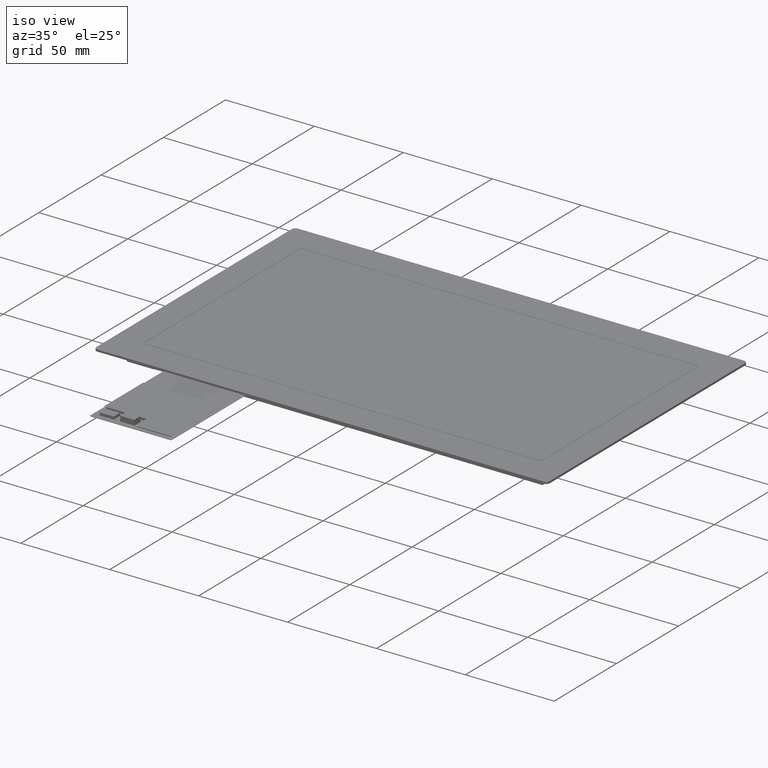
[diagram: clean part render]
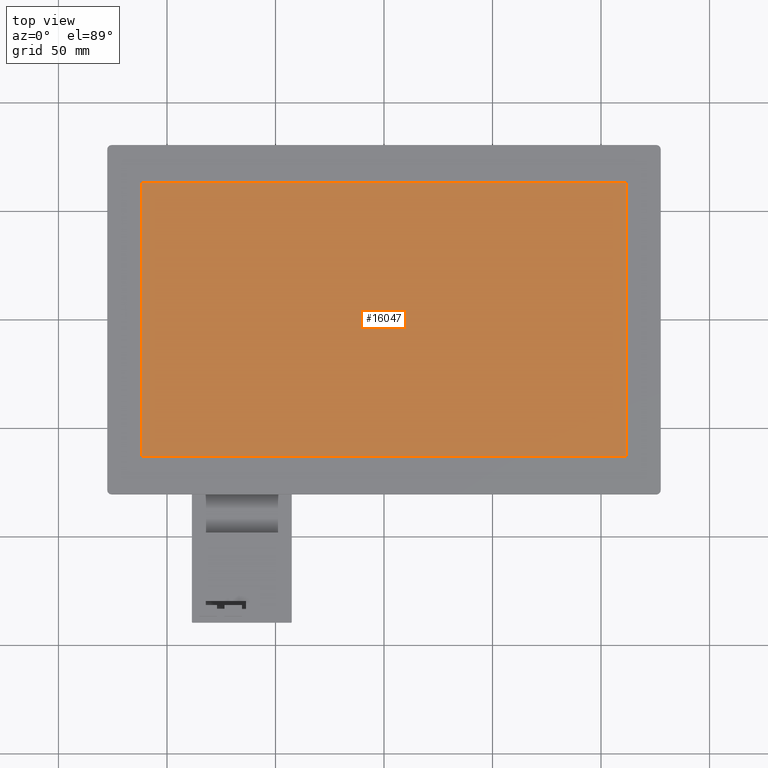
[diagram: tour spotlight — one face highlighted and labeled with its STEP entity id]
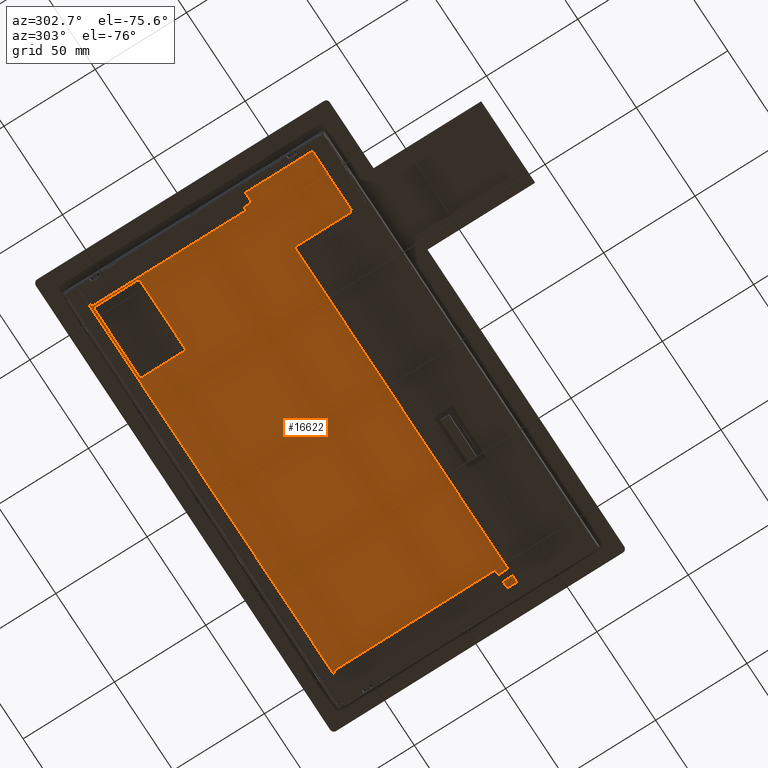
[diagram: tour spotlight — one face highlighted and labeled with its STEP entity id]
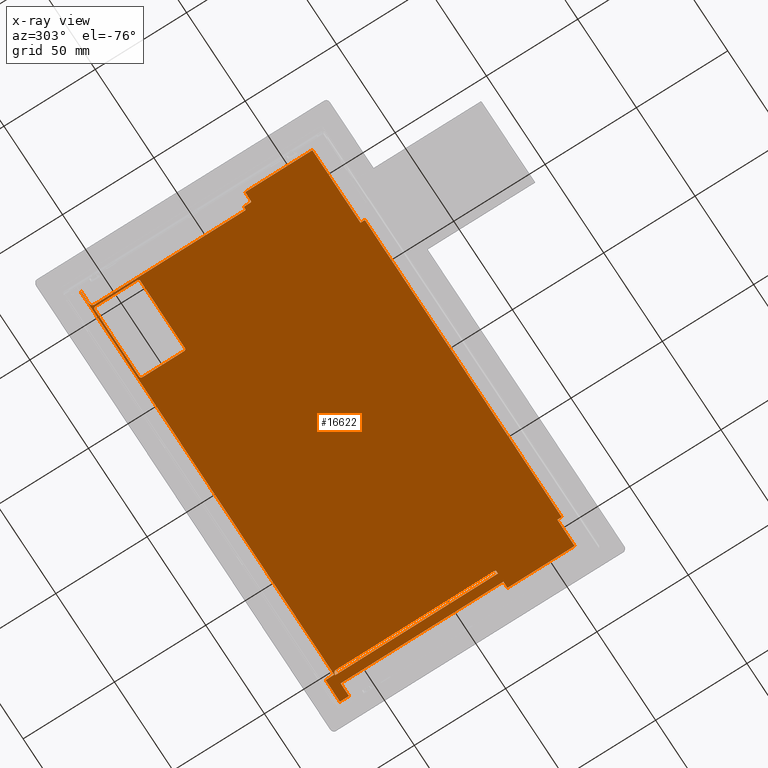
[diagram: x-ray of the same camera — body ghosted, this tour face saturated]
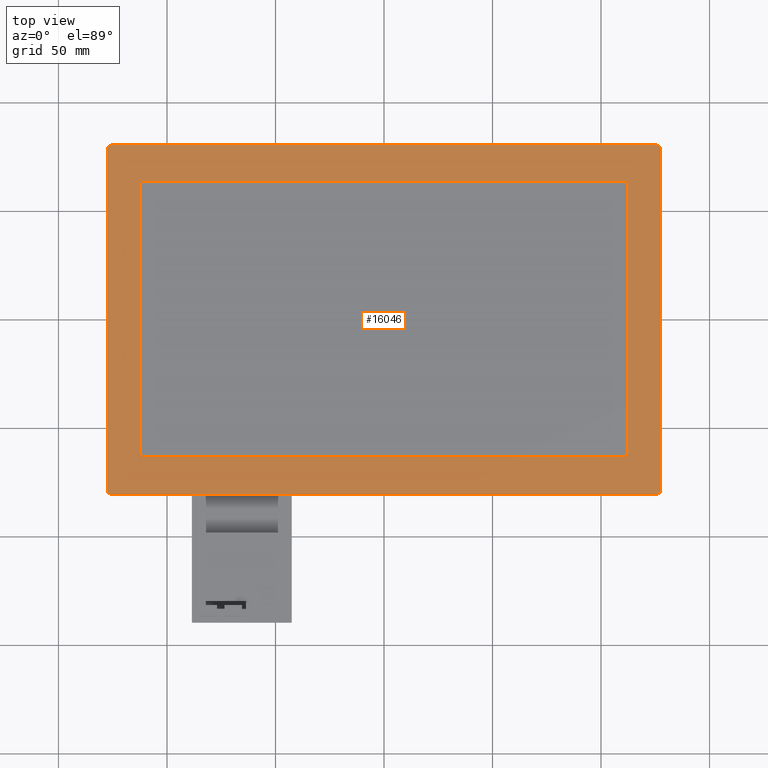
[diagram: tour spotlight — one face highlighted and labeled with its STEP entity id]
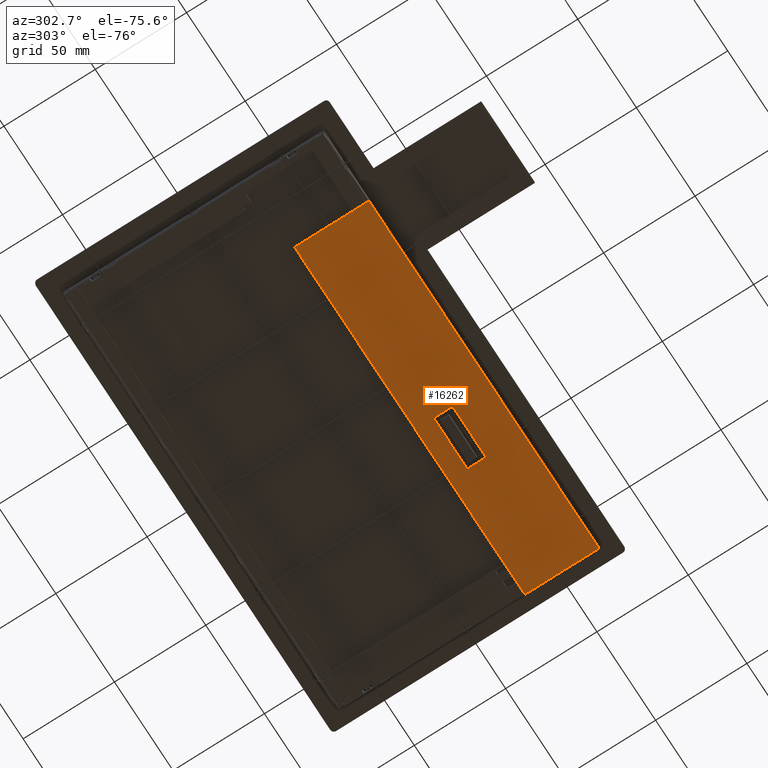
[diagram: tour spotlight — one face highlighted and labeled with its STEP entity id]
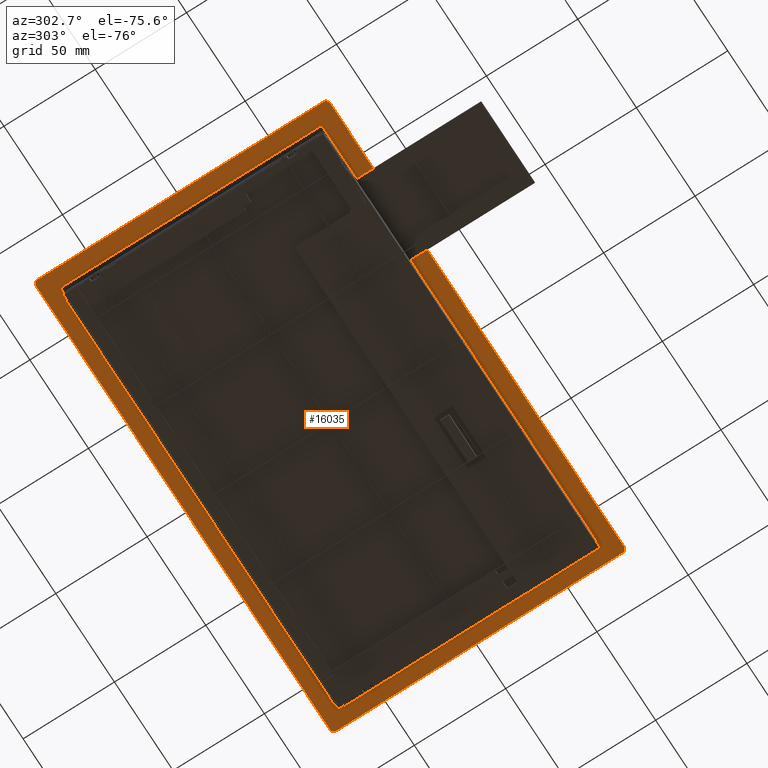
[diagram: tour spotlight — one face highlighted and labeled with its STEP entity id]
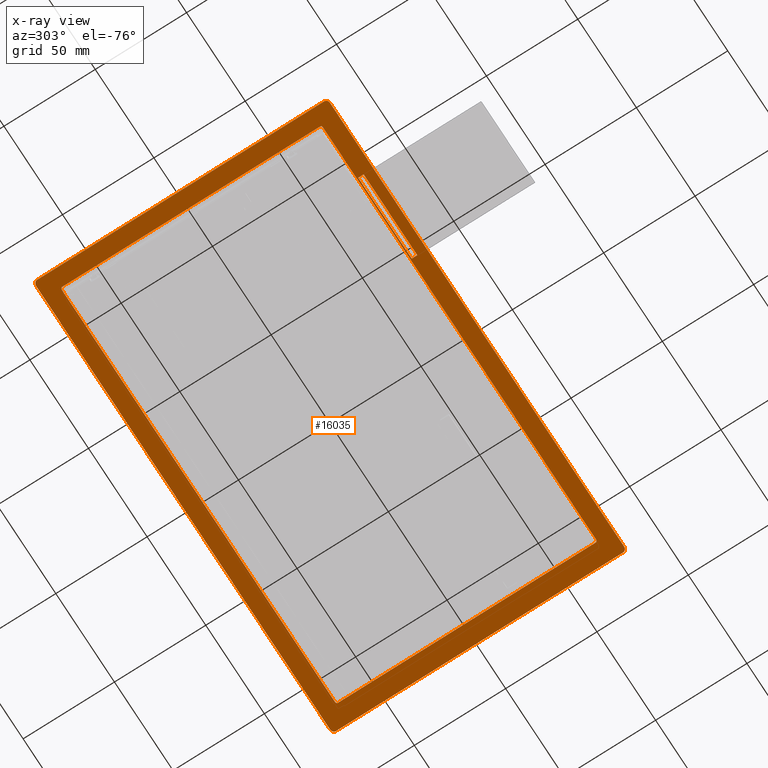
[diagram: x-ray of the same camera — body ghosted, this tour face saturated]
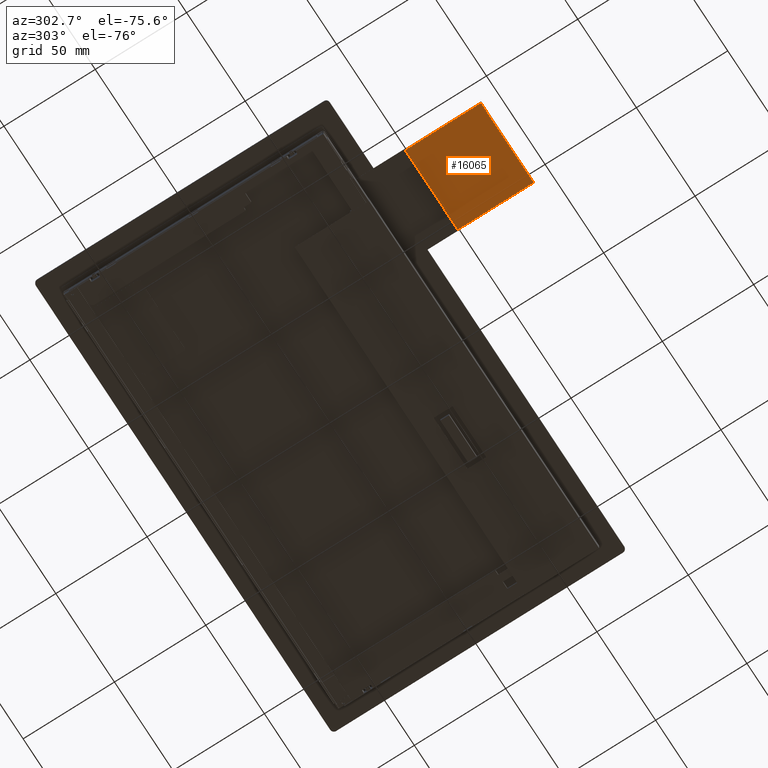
[diagram: tour spotlight — one face highlighted and labeled with its STEP entity id]
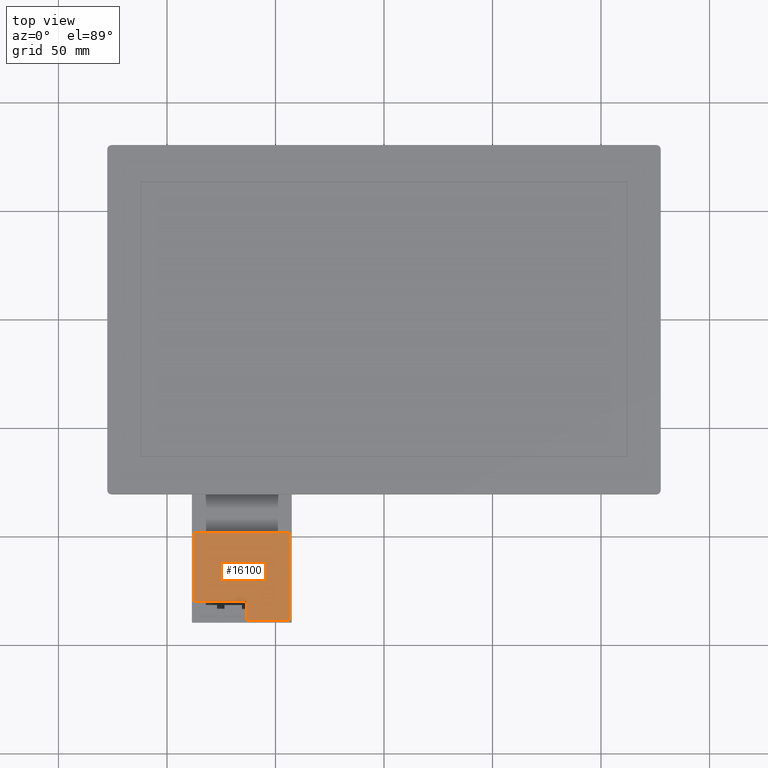
[diagram: tour spotlight — one face highlighted and labeled with its STEP entity id]
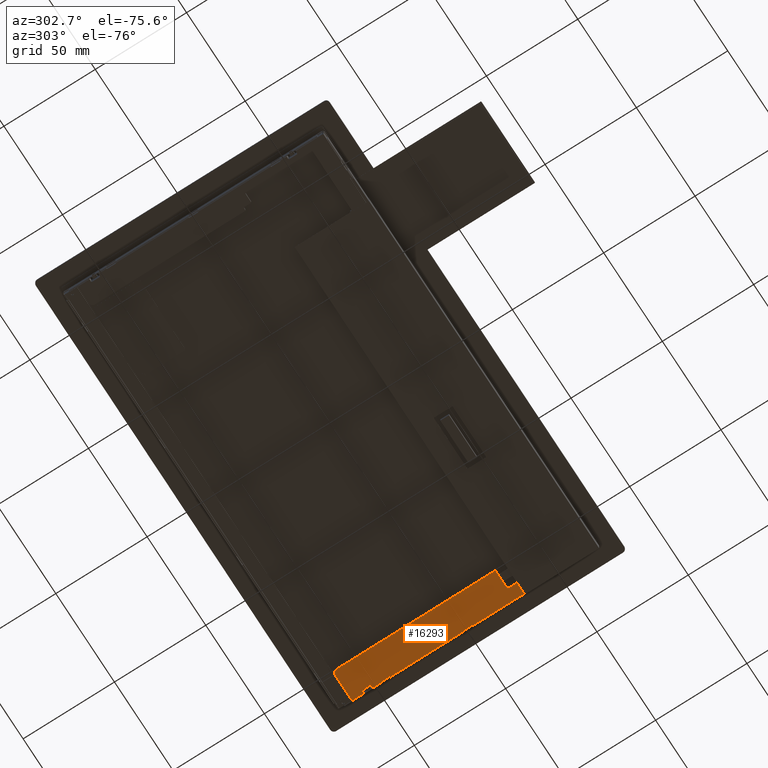
[diagram: tour spotlight — one face highlighted and labeled with its STEP entity id]
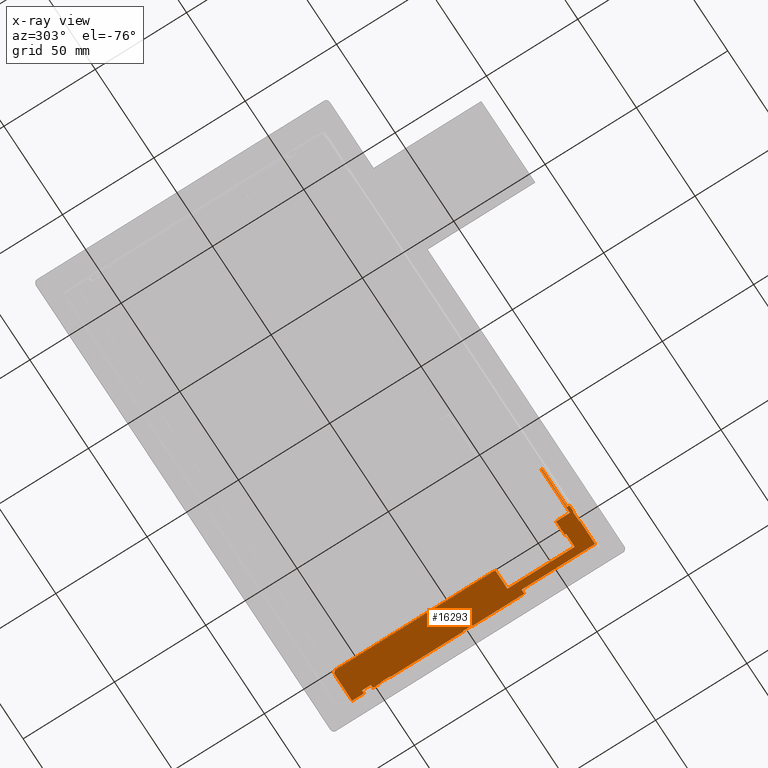
[diagram: x-ray of the same camera — body ghosted, this tour face saturated]
A machine part: a face-by-face anatomy tour. The part has 860 B-rep faces; the first image is the clean iso view, then the 8 largest visible faces are spotlighted one at a time (largest first), each with its STEP entity span.

Face 1 — top view, entity #16047. In plain terms, the highlighted planar face has unit normal (-0, 0, 1).
Definition (entity closure, byte-faithful):
#181=PLANE('',#16957);
#913=FACE_OUTER_BOUND('',#1783,.T.);
#1783=EDGE_LOOP('',(#11365,#11366,#11367,#11368));
#2786=LINE('',#22614,#4907);
#2790=LINE('',#22622,#4911);
#2793=LINE('',#22628,#4914);
#2796=LINE('',#22633,#4917);
#4907=VECTOR('',#18206,10.);
#4911=VECTOR('',#18212,10.);
#4914=VECTOR('',#18217,10.);
#4917=VECTOR('',#18222,10.);
#7268=VERTEX_POINT('',#22612);
#7269=VERTEX_POINT('',#22613);
#7272=VERTEX_POINT('',#22621);
#7274=VERTEX_POINT('',#22627);
#8863=EDGE_CURVE('',#7268,#7269,#2786,.T.);
#8867=EDGE_CURVE('',#7272,#7268,#2790,.T.);
#8870=EDGE_CURVE('',#7274,#7272,#2793,.T.);
#8873=EDGE_CURVE('',#7269,#7274,#2796,.T.);
#11365=ORIENTED_EDGE('',*,*,#8863,.T.);
#11366=ORIENTED_EDGE('',*,*,#8873,.T.);
#11367=ORIENTED_EDGE('',*,*,#8870,.T.);
#11368=ORIENTED_EDGE('',*,*,#8867,.T.);
#16047=ADVANCED_FACE('',(#913),#181,.T.);
#16957=AXIS2_PLACEMENT_3D('',#22677,#18260,#18261);
#18206=DIRECTION('',(-5.55111512312586E-17,1.,-2.86113138723092E-17));
#18212=DIRECTION('',(1.,2.14597380803196E-16,1.22309489444525E-16));
#18217=DIRECTION('',(2.49544409427584E-16,-1.,2.86113138723092E-17));
#18222=DIRECTION('',(-1.,-5.55111512312586E-17,-1.22309489444525E-16));
#18260=DIRECTION('center_axis',(-1.22309489444525E-16,2.86113138723092E-17,
1.));
#18261=DIRECTION('ref_axis',(1.,5.55111512312586E-17,1.22309489444525E-16));
#22612=CARTESIAN_POINT('',(111.66,-62.94,4.61852778244065E-13));
#22613=CARTESIAN_POINT('',(111.66,62.94,4.61852778244065E-13));
#22614=CARTESIAN_POINT('',(111.66,-71.795,4.61852778244065E-13));
#22621=CARTESIAN_POINT('',(-111.66,-62.94,4.61852778244065E-13));
#22622=CARTESIAN_POINT('',(-55.8300000000001,-62.94,4.61852778244065E-13));
#22627=CARTESIAN_POINT('',(-111.66,62.94,4.61852778244065E-13));
#22628=CARTESIAN_POINT('',(-111.66,-8.85499999999999,4.61852778244065E-13));
#22633=CARTESIAN_POINT('',(55.8299999999999,62.94,4.61852778244065E-13));
#22677=CARTESIAN_POINT('Origin',(-6.43929354282591E-14,-80.65,4.61852778244065E-13));

Face 2 — auxiliary view, entity #16622. An x-ray twin of the same camera follows (body ghosted, this face saturated) — the face is partly hidden behind the body. In plain terms, the highlighted planar face has unit normal (0, -0.01, -0.9999).
Definition (entity closure, byte-faithful):
#23=ELLIPSE('',#17347,0.50002504026918,0.500000000000008);
#24=ELLIPSE('',#17350,0.50002504026918,0.500000000000008);
#25=ELLIPSE('',#17353,0.500025040269174,0.500000000000002);
#26=ELLIPSE('',#17444,0.300015024161564,0.300000000000061);
#27=ELLIPSE('',#17462,0.500025040269196,0.500000000000024);
#28=ELLIPSE('',#17465,2.00010016107665,1.99999999999996);
#29=ELLIPSE('',#17481,0.500025040269105,0.499999999999933);
#30=ELLIPSE('',#17493,2.0001001610767,2.00000000000002);
#106=FACE_BOUND('',#2409,.T.);
#107=FACE_BOUND('',#2410,.T.);
#645=PLANE('',#17730);
#1488=FACE_OUTER_BOUND('',#2408,.T.);
#2408=EDGE_LOOP('',(#14654,#14655,#14656,#14657,#14658,#14659,#14660,#14661,
#14662,#14663,#14664,#14665,#14666,#14667,#14668,#14669,#14670,#14671,#14672,
#14673,#14674,#14675,#14676,#14677,#14678,#14679));
#2409=EDGE_LOOP('',(#14680,#14681,#14682,#14683,#14684,#14685,#14686,#14687));
#2410=EDGE_LOOP('',(#14688,#14689,#14690,#14691,#14692,#14693));
#2694=LINE('',#22359,#4815);
#2700=LINE('',#22374,#4821);
#2702=LINE('',#22380,#4823);
#2703=LINE('',#22382,#4824);
#3356=LINE('',#24252,#5477);
#3363=LINE('',#24266,#5484);
#3406=LINE('',#24363,#5527);
#3445=LINE('',#24458,#5566);
#3449=LINE('',#24466,#5570);
#3463=LINE('',#24499,#5584);
#3531=LINE('',#24649,#5652);
#3535=LINE('',#24657,#5656);
#3541=LINE('',#24667,#5662);
#3544=LINE('',#24675,#5665);
#3548=LINE('',#24684,#5669);
#3554=LINE('',#24694,#5675);
#3557=LINE('',#24699,#5678);
#3559=LINE('',#24714,#5680);
#3744=LINE('',#25159,#5865);
#3748=LINE('',#25168,#5869);
#3750=LINE('',#25171,#5871);
#3767=LINE('',#25209,#5888);
#3772=LINE('',#25220,#5893);
#3778=LINE('',#25231,#5899);
#4265=LINE('',#26325,#6386);
#4270=LINE('',#26336,#6391);
#4271=LINE('',#26338,#6392);
#4272=LINE('',#26339,#6393);
#4815=VECTOR('',#18026,10.);
#4821=VECTOR('',#18042,10.);
#4823=VECTOR('',#18050,10.);
#4824=VECTOR('',#18053,10.);
#5477=VECTOR('',#19450,10.);
#5484=VECTOR('',#19457,10.);
#5527=VECTOR('',#19522,10.);
#5566=VECTOR('',#19593,10.);
#5570=VECTOR('',#19597,10.);
#5584=VECTOR('',#19619,10.);
#5652=VECTOR('',#19735,10.);
#5656=VECTOR('',#19741,10.);
#5662=VECTOR('',#19749,10.);
#5665=VECTOR('',#19754,10.);
#5669=VECTOR('',#19760,10.);
#5675=VECTOR('',#19772,10.);
#5678=VECTOR('',#19779,10.);
#5680=VECTOR('',#19801,10.);
#5865=VECTOR('',#20188,10.);
#5869=VECTOR('',#20198,10.);
#5871=VECTOR('',#20202,10.);
#5888=VECTOR('',#20247,10.);
#5893=VECTOR('',#20254,10.);
#5899=VECTOR('',#20262,10.);
#6386=VECTOR('',#21253,10.);
#6391=VECTOR('',#21264,10.);
#6392=VECTOR('',#21265,10.);
#6393=VECTOR('',#21266,10.);
#6932=CIRCLE('',#16894,1.);
#6936=CIRCLE('',#16901,1.);
#6937=CIRCLE('',#16903,1.);
#6938=CIRCLE('',#16906,1.);
#7174=VERTEX_POINT('',#22338);
#7175=VERTEX_POINT('',#22340);
#7182=VERTEX_POINT('',#22358);
#7183=VERTEX_POINT('',#22362);
#7184=VERTEX_POINT('',#22366);
#7185=VERTEX_POINT('',#22368);
#7186=VERTEX_POINT('',#22372);
#7187=VERTEX_POINT('',#22376);
#7711=VERTEX_POINT('',#24249);
#7712=VERTEX_POINT('',#24251);
#7718=VERTEX_POINT('',#24263);
#7719=VERTEX_POINT('',#24265);
#7761=VERTEX_POINT('',#24361);
#7762=VERTEX_POINT('',#24362);
#7801=VERTEX_POINT('',#24456);
#7802=VERTEX_POINT('',#24457);
#7805=VERTEX_POINT('',#24463);
#7806=VERTEX_POINT('',#24465);
#7820=VERTEX_POINT('',#24496);
#7821=VERTEX_POINT('',#24498);
#7878=VERTEX_POINT('',#24646);
#7879=VERTEX_POINT('',#24648);
#7882=VERTEX_POINT('',#24656);
#7885=VERTEX_POINT('',#24665);
#7888=VERTEX_POINT('',#24672);
#7889=VERTEX_POINT('',#24674);
#7892=VERTEX_POINT('',#24681);
#7893=VERTEX_POINT('',#24683);
#7894=VERTEX_POINT('',#24691);
#7896=VERTEX_POINT('',#24703);
#7897=VERTEX_POINT('',#24713);
#8055=VERTEX_POINT('',#25156);
#8056=VERTEX_POINT('',#25158);
#8065=VERTEX_POINT('',#25208);
#8069=VERTEX_POINT('',#25218);
#8070=VERTEX_POINT('',#25219);
#8074=VERTEX_POINT('',#25229);
#8385=VERTEX_POINT('',#26323);
#8388=VERTEX_POINT('',#26335);
#8389=VERTEX_POINT('',#26337);
#8743=EDGE_CURVE('',#7175,#7174,#6932,.T.);
#8752=EDGE_CURVE('',#7182,#7175,#2694,.T.);
#8754=EDGE_CURVE('',#7183,#7182,#6936,.T.);
#8757=EDGE_CURVE('',#7185,#7184,#6937,.T.);
#8760=EDGE_CURVE('',#7184,#7186,#2700,.T.);
#8762=EDGE_CURVE('',#7186,#7187,#6938,.T.);
#8763=EDGE_CURVE('',#7187,#7183,#2702,.T.);
#8764=EDGE_CURVE('',#7174,#7185,#2703,.T.);
#9536=EDGE_CURVE('',#7712,#7711,#3356,.T.);
#9543=EDGE_CURVE('',#7719,#7718,#3363,.T.);
#9590=EDGE_CURVE('',#7761,#7762,#3406,.T.);
#9637=EDGE_CURVE('',#7801,#7802,#3445,.T.);
#9641=EDGE_CURVE('',#7806,#7805,#3449,.T.);
#9657=EDGE_CURVE('',#7821,#7820,#3463,.T.);
#9735=EDGE_CURVE('',#7879,#7878,#3531,.T.);
#9739=EDGE_CURVE('',#7878,#7882,#3535,.T.);
#9745=EDGE_CURVE('',#7882,#7885,#3541,.T.);
#9748=EDGE_CURVE('',#7889,#7888,#3544,.T.);
#9752=EDGE_CURVE('',#7893,#7892,#3548,.T.);
#9758=EDGE_CURVE('',#7894,#7821,#3554,.T.);
#9761=EDGE_CURVE('',#7820,#7879,#3557,.T.);
#9764=EDGE_CURVE('',#7892,#7896,#23,.T.);
#9766=EDGE_CURVE('',#7888,#7893,#24,.T.);
#9768=EDGE_CURVE('',#7885,#7889,#25,.T.);
#9769=EDGE_CURVE('',#7897,#7894,#3559,.T.);
#9964=EDGE_CURVE('',#7802,#7897,#26,.T.);
#9983=EDGE_CURVE('',#8056,#8055,#3744,.T.);
#9988=EDGE_CURVE('',#7711,#7801,#3748,.T.);
#9990=EDGE_CURVE('',#7805,#7719,#3750,.T.);
#9995=EDGE_CURVE('',#8055,#7806,#27,.T.);
#9996=EDGE_CURVE('',#7718,#8056,#28,.T.);
#10009=EDGE_CURVE('',#8065,#7761,#3767,.T.);
#10014=EDGE_CURVE('',#8069,#8070,#3772,.T.);
#10020=EDGE_CURVE('',#7896,#8074,#3778,.T.);
#10026=EDGE_CURVE('',#8074,#8069,#29,.T.);
#10057=EDGE_CURVE('',#8070,#8065,#30,.T.);
#10554=EDGE_CURVE('',#8385,#7762,#4265,.T.);
#10559=EDGE_CURVE('',#8388,#8385,#4270,.T.);
#10560=EDGE_CURVE('',#8388,#8389,#4271,.T.);
#10561=EDGE_CURVE('',#8389,#7712,#4272,.T.);
#14654=ORIENTED_EDGE('',*,*,#9536,.T.);
#14655=ORIENTED_EDGE('',*,*,#9988,.T.);
#14656=ORIENTED_EDGE('',*,*,#9637,.T.);
#14657=ORIENTED_EDGE('',*,*,#9964,.T.);
#14658=ORIENTED_EDGE('',*,*,#9769,.T.);
#14659=ORIENTED_EDGE('',*,*,#9758,.T.);
#14660=ORIENTED_EDGE('',*,*,#9657,.T.);
#14661=ORIENTED_EDGE('',*,*,#9761,.T.);
#14662=ORIENTED_EDGE('',*,*,#9735,.T.);
#14663=ORIENTED_EDGE('',*,*,#9739,.T.);
#14664=ORIENTED_EDGE('',*,*,#9745,.T.);
#14665=ORIENTED_EDGE('',*,*,#9768,.T.);
#14666=ORIENTED_EDGE('',*,*,#9748,.T.);
#14667=ORIENTED_EDGE('',*,*,#9766,.T.);
#14668=ORIENTED_EDGE('',*,*,#9752,.T.);
#14669=ORIENTED_EDGE('',*,*,#9764,.T.);
#14670=ORIENTED_EDGE('',*,*,#10020,.T.);
#14671=ORIENTED_EDGE('',*,*,#10026,.T.);
#14672=ORIENTED_EDGE('',*,*,#10014,.T.);
#14673=ORIENTED_EDGE('',*,*,#10057,.T.);
#14674=ORIENTED_EDGE('',*,*,#10009,.T.);
#14675=ORIENTED_EDGE('',*,*,#9590,.T.);
#14676=ORIENTED_EDGE('',*,*,#10554,.F.);
#14677=ORIENTED_EDGE('',*,*,#10559,.F.);
#14678=ORIENTED_EDGE('',*,*,#10560,.T.);
#14679=ORIENTED_EDGE('',*,*,#10561,.T.);
#14680=ORIENTED_EDGE('',*,*,#8757,.T.);
#14681=ORIENTED_EDGE('',*,*,#8760,.T.);
#14682=ORIENTED_EDGE('',*,*,#8762,.T.);
#14683=ORIENTED_EDGE('',*,*,#8763,.T.);
#14684=ORIENTED_EDGE('',*,*,#8754,.T.);
#14685=ORIENTED_EDGE('',*,*,#8752,.T.);
#14686=ORIENTED_EDGE('',*,*,#8743,.T.);
#14687=ORIENTED_EDGE('',*,*,#8764,.T.);
#14688=ORIENTED_EDGE('',*,*,#9990,.T.);
#14689=ORIENTED_EDGE('',*,*,#9543,.T.);
#14690=ORIENTED_EDGE('',*,*,#9996,.T.);
#14691=ORIENTED_EDGE('',*,*,#9983,.T.);
#14692=ORIENTED_EDGE('',*,*,#9995,.T.);
#14693=ORIENTED_EDGE('',*,*,#9641,.T.);
#16622=ADVANCED_FACE('',(#1488,#106,#107),#645,.T.);
#16894=AXIS2_PLACEMENT_3D('',#22341,#18009,#18010);
#16901=AXIS2_PLACEMENT_3D('',#22363,#18030,#18031);
#16903=AXIS2_PLACEMENT_3D('',#22369,#18036,#18037);
#16906=AXIS2_PLACEMENT_3D('',#22378,#18046,#18047);
#17347=AXIS2_PLACEMENT_3D('',#24705,#19785,#19786);
#17350=AXIS2_PLACEMENT_3D('',#24708,#19791,#19792);
#17353=AXIS2_PLACEMENT_3D('',#24711,#19797,#19798);
#17444=AXIS2_PLACEMENT_3D('',#25116,#20150,#20151);
#17462=AXIS2_PLACEMENT_3D('',#25180,#20211,#20212);
#17465=AXIS2_PLACEMENT_3D('',#25183,#20217,#20218);
#17481=AXIS2_PLACEMENT_3D('',#25243,#20275,#20276);
#17493=AXIS2_PLACEMENT_3D('',#25306,#20328,#20329);
#17730=AXIS2_PLACEMENT_3D('',#26334,#21262,#21263);
#18009=DIRECTION('center_axis',(-1.176729626456E-16,0.0100076747053688,
0.999949921969591));
#18010=DIRECTION('ref_axis',(-0.707106781186548,-0.707071370671657,0.00707649464807545));
#18026=DIRECTION('',(-3.10780451876009E-16,-0.999949921969591,0.0100076747053688));
#18030=DIRECTION('center_axis',(-1.176729626456E-16,0.0100076747053688,
0.999949921969591));
#18031=DIRECTION('ref_axis',(-0.707106781186547,0.707071370671657,-0.00707649464807533));
#18036=DIRECTION('center_axis',(-1.176729626456E-16,0.0100076747053688,
0.999949921969591));
#18037=DIRECTION('ref_axis',(0.707106781186549,-0.707071370671656,0.00707649464807531));
#18042=DIRECTION('',(9.32505345666097E-16,0.999949921969591,-0.0100076747053688));
#18046=DIRECTION('center_axis',(-1.176729626456E-16,0.0100076747053688,
0.999949921969591));
#18047=DIRECTION('ref_axis',(0.707106781186548,0.707071370671657,-0.00707649464807545));
#18050=DIRECTION('',(-1.,4.42807347092448E-16,-1.22110549588264E-16));
#18053=DIRECTION('',(1.,-6.64840832461002E-16,1.24332699764436E-16));
#19450=DIRECTION('',(-1.,4.44089209850062E-16,-1.22123378696216E-16));
#19457=DIRECTION('',(-1.,4.44089209850062E-16,-1.22123378696216E-16));
#19522=DIRECTION('',(4.45289141785019E-16,0.999949921969591,-0.0100076747053688));
#19593=DIRECTION('',(1.,-4.44089209850062E-16,1.22123378696216E-16));
#19597=DIRECTION('',(1.,-4.44089209850062E-16,1.22123378696216E-16));
#19619=DIRECTION('',(-4.45289141785019E-16,-0.999949921969591,0.0100076747053688));
#19735=DIRECTION('',(4.45289141785019E-16,0.999949921969591,-0.0100076747053688));
#19741=DIRECTION('',(-1.,4.44089209850062E-16,-1.22123378696216E-16));
#19749=DIRECTION('',(4.45289141785019E-16,0.999949921969591,-0.0100076747053688));
#19754=DIRECTION('',(1.,-4.44089209850062E-16,1.22123378696216E-16));
#19760=DIRECTION('',(4.45289141785019E-16,0.999949921969591,-0.0100076747053688));
#19772=DIRECTION('',(-1.,4.44089209850062E-16,-1.22123378696216E-16));
#19779=DIRECTION('',(-1.,4.44089209850062E-16,-1.22123378696216E-16));
#19785=DIRECTION('center_axis',(1.176729626456E-16,-0.0100076747053688,
-0.999949921969591));
#19786=DIRECTION('ref_axis',(1.92487499339341E-14,0.999949921969591,-0.0100076747053688));
#19791=DIRECTION('center_axis',(-1.176729626456E-16,0.0100076747053688,
0.999949921969591));
#19792=DIRECTION('ref_axis',(-1.92487499339341E-14,-0.999949921969591,0.0100076747053688));
#19797=DIRECTION('center_axis',(1.176729626456E-16,-0.0100076747053688,
-0.999949921969591));
#19798=DIRECTION('ref_axis',(6.68998091777557E-15,0.999949921969591,-0.0100076747053688));
#19801=DIRECTION('',(-4.45289141785019E-16,-0.999949921969591,0.0100076747053688));
#20150=DIRECTION('center_axis',(1.176729626456E-16,-0.0100076747053688,
-0.999949921969591));
#20151=DIRECTION('ref_axis',(-2.18754956439469E-13,0.999949921969591,-0.0100076747053688));
#20188=DIRECTION('',(-4.45289141785019E-16,-0.999949921969591,0.0100076747053688));
#20198=DIRECTION('',(-4.45289141785019E-16,-0.999949921969591,0.0100076747053688));
#20202=DIRECTION('',(4.45289141785019E-16,0.999949921969591,-0.0100076747053688));
#20211=DIRECTION('center_axis',(-1.176729626456E-16,0.0100076747053688,
0.999949921969591));
#20212=DIRECTION('ref_axis',(-4.4528914178502E-16,-0.999949921969591,0.0100076747053688));
#20217=DIRECTION('center_axis',(-1.176729626456E-16,0.0100076747053688,
0.999949921969591));
#20218=DIRECTION('ref_axis',(-2.67705674621032E-15,0.999949921969591,-0.0100076747053688));
#20247=DIRECTION('',(-1.,4.44089209850062E-16,-1.22123378696216E-16));
#20254=DIRECTION('',(4.45289141785019E-16,0.999949921969591,-0.0100076747053688));
#20262=DIRECTION('',(1.,-4.44089209850062E-16,1.22123378696216E-16));
#20275=DIRECTION('center_axis',(-1.176729626456E-16,0.0100076747053688,
0.999949921969591));
#20276=DIRECTION('ref_axis',(-1.92487499339369E-14,-0.999949921969591,0.0100076747053688));
#20328=DIRECTION('center_axis',(-1.176729626456E-16,0.0100076747053688,
0.999949921969591));
#20329=DIRECTION('ref_axis',(3.56763502978028E-15,0.999949921969591,-0.0100076747053688));
#21253=DIRECTION('',(-1.,4.44089209850062E-16,-1.22123378696216E-16));
#21262=DIRECTION('center_axis',(1.176729626456E-16,-0.0100076747053688,
-0.999949921969591));
#21263=DIRECTION('ref_axis',(-1.,4.44089209850062E-16,-1.22123378696216E-16));
#21264=DIRECTION('',(-0.00625467434339666,-0.99993036228227,0.0100074789485777));
#21265=DIRECTION('',(1.,-4.44089209850062E-16,1.22123378696216E-16));
#21266=DIRECTION('',(-4.45289141785019E-16,-0.999949921969591,0.0100076747053688));
#22338=CARTESIAN_POINT('',(-102.56,37.8842774381852,-6.47250258648295));
#22340=CARTESIAN_POINT('',(-103.56,38.8842273601548,-6.48251026118831));
#22341=CARTESIAN_POINT('Origin',(-102.56,38.8842273601548,-6.48251026118835));
#22358=CARTESIAN_POINT('',(-103.56,61.8830755654553,-6.7126867794118));
#22359=CARTESIAN_POINT('',(-103.56,31.0937857831943,-6.40454215158558));
#22362=CARTESIAN_POINT('',(-102.56,62.8830254874249,-6.72269445411717));
#22363=CARTESIAN_POINT('Origin',(-102.56,61.8830755654553,-6.71268677941183));
#22366=CARTESIAN_POINT('',(-63.5600000000002,38.8842273601547,-6.48251026118832));
#22368=CARTESIAN_POINT('',(-64.5600000000002,37.8842774381851,-6.47250258648295));
#22369=CARTESIAN_POINT('Origin',(-64.5600000000002,38.8842273601547,-6.48251026118835));
#22372=CARTESIAN_POINT('',(-63.5600000000002,61.8830755654553,-6.7126867794118));
#22374=CARTESIAN_POINT('',(-63.5600000000002,24.8440987708843,-6.34199418467702));
#22376=CARTESIAN_POINT('',(-64.5600000000002,62.8830254874249,-6.72269445411717));
#22378=CARTESIAN_POINT('Origin',(-64.5600000000002,61.8830755654553,-6.71268677941183));
#22380=CARTESIAN_POINT('',(-99.1616000000001,62.8830254874249,-6.7226944541172));
#22382=CARTESIAN_POINT('',(-109.1616,37.8842774381852,-6.47250258648298));
#24249=CARTESIAN_POINT('',(108.36,63.5800000000065,-6.72966989763367));
#24251=CARTESIAN_POINT('',(115.5,63.5800000000065,-6.72966989763349));
#24252=CARTESIAN_POINT('',(-3.30321356237298,63.5800000000065,-6.72966989763351));
#24263=CARTESIAN_POINT('',(103.56,63.5800000000065,-6.72966989763367));
#24265=CARTESIAN_POINT('',(103.71,63.5800000000065,-6.72966989763367));
#24266=CARTESIAN_POINT('',(-3.30321356237298,63.5800000000065,-6.72966989763351));
#24361=CARTESIAN_POINT('',(-112.96,63.5800000000066,-6.7296698976337));
#24362=CARTESIAN_POINT('',(-112.96,63.8800000000066,-6.73267235040205));
#24363=CARTESIAN_POINT('',(-112.96,-33.5714637316594,-5.75736096014005));
#24456=CARTESIAN_POINT('',(108.36,-25.4500000000035,-5.83864199769218));
#24457=CARTESIAN_POINT('',(111.56,-25.4499999999935,-5.83864199769228));
#24458=CARTESIAN_POINT('',(-3.47307013012252,-25.4499999999935,-5.83864199769225));
#24463=CARTESIAN_POINT('',(103.71,-25.4499999999935,-5.83864199769228));
#24465=CARTESIAN_POINT('',(102.06,-25.4499999999985,-5.83864199769217));
#24466=CARTESIAN_POINT('',(-3.47307013012252,-25.4499999999935,-5.83864199769225));
#24496=CARTESIAN_POINT('',(97.06,-64.6899999999935,-5.44592117556827));
#24498=CARTESIAN_POINT('',(97.06,-62.2899999998995,-5.4699407982756));
#24499=CARTESIAN_POINT('',(97.06,-32.9576279358293,-5.76350433675539));
#24646=CARTESIAN_POINT('',(-70.82999999999,-62.2899999998994,-5.46994079827562));
#24648=CARTESIAN_POINT('',(-70.82999999999,-64.6899999999934,-5.44592117556829));
#24649=CARTESIAN_POINT('',(-70.82999999999,-32.8526384519523,-5.76455508997718));
#24656=CARTESIAN_POINT('',(-111.86,-62.2899999999944,-5.46994079771675));
#24657=CARTESIAN_POINT('',(-102.586140152238,-62.2899999999934,-5.46994079771657));
#24665=CARTESIAN_POINT('',(-111.86,-25.9499999999934,-5.83363790974475));
#24667=CARTESIAN_POINT('',(-111.86,-22.2736980765431,-5.87043098603812));
#24672=CARTESIAN_POINT('',(-106.86,-25.4499999999984,-5.8386419976922));
#24674=CARTESIAN_POINT('',(-111.36,-25.4499999999984,-5.8386419976922));
#24675=CARTESIAN_POINT('',(-111.9366,-25.4499999999934,-5.83864199769226));
#24681=CARTESIAN_POINT('',(-106.36,-21.6499999999934,-5.8766730660937));
#24683=CARTESIAN_POINT('',(-106.36,-24.9499999999934,-5.84364608563985));
#24684=CARTESIAN_POINT('',(-106.36,-11.9897281558358,-5.97335476590453));
#24691=CARTESIAN_POINT('',(111.86,-62.2899999999935,-5.46994079771653));
#24694=CARTESIAN_POINT('',(-4.53644671741254,-62.2899999999935,-5.46994079771656));
#24699=CARTESIAN_POINT('',(-56.8815999999983,-64.6899999999934,-5.44592117556831));
#24703=CARTESIAN_POINT('',(-105.86,-21.1500000000014,-5.8816771540411));
#24705=CARTESIAN_POINT('Origin',(-105.86,-21.6499999999934,-5.87667306609367));
#24708=CARTESIAN_POINT('Origin',(-106.86,-24.9499999999934,-5.84364608563982));
#24711=CARTESIAN_POINT('Origin',(-111.36,-25.9499999999934,-5.83363790974471));
#24713=CARTESIAN_POINT('',(111.86,-25.7499999999935,-5.83563954492374));
#24714=CARTESIAN_POINT('',(111.86,-22.2239180357609,-5.8709291934423));
#25116=CARTESIAN_POINT('Origin',(111.56,-25.7499999999947,-5.83563954492369));
#25156=CARTESIAN_POINT('',(101.56,-24.9499999999935,-5.84364608563982));
#25158=CARTESIAN_POINT('',(101.56,61.5800000000065,-6.70965354584347));
#25159=CARTESIAN_POINT('',(101.56,9.71086394648281,-6.19053810869245));
#25168=CARTESIAN_POINT('',(108.36,9.20977303946623,-6.18552310275559));
#25171=CARTESIAN_POINT('',(103.71,9.20977303946623,-6.18552310275559));
#25180=CARTESIAN_POINT('Origin',(102.06,-24.9499999999935,-5.84364608563979));
#25183=CARTESIAN_POINT('Origin',(103.56,61.5800000000065,-6.70965354584328));
#25208=CARTESIAN_POINT('',(-106.56,63.5800000000066,-6.7296698976337));
#25209=CARTESIAN_POINT('',(-111.714886437627,63.5800000000066,-6.72966989763352));
#25218=CARTESIAN_POINT('',(-104.56,-20.6499999999934,-5.8866812419888));
#25219=CARTESIAN_POINT('',(-104.56,61.5800000000066,-6.7096535458435));
#25220=CARTESIAN_POINT('',(-104.56,10.7805546533853,-6.20124376144052));
#25229=CARTESIAN_POINT('',(-105.06,-21.1500000000014,-5.8816771540411));
#25231=CARTESIAN_POINT('',(-110.1116,-21.1499999999934,-5.88167715404122));
#25243=CARTESIAN_POINT('Origin',(-105.06,-20.6499999999935,-5.88668124198877));
#25306=CARTESIAN_POINT('Origin',(-106.56,61.5800000000066,-6.70965354584331));
#26323=CARTESIAN_POINT('',(103.244570690701,63.8800000000065,-6.73267235040202));
#26325=CARTESIAN_POINT('',(63.0855784843425,63.8800000000065,-6.73267235040203));
#26334=CARTESIAN_POINT('Origin',(-114.7632,-0.695453921036427,-6.08638984905396));
#26335=CARTESIAN_POINT('',(103.274137523997,68.6068287325715,-6.77997928378358));
#26336=CARTESIAN_POINT('',(103.423603454946,92.5018413706393,-7.01912477328114));
#26337=CARTESIAN_POINT('',(115.5,68.6068287325715,-6.77997928378357));
#26338=CARTESIAN_POINT('',(-113.,68.6068287325716,-6.7799792837836));
#26339=CARTESIAN_POINT('',(115.5,68.6068287325715,-6.77997928378357));

Face 3 — top view, entity #16046. In plain terms, the highlighted planar face has unit normal (-0, 0, 1).
Definition (entity closure, byte-faithful):
#55=FACE_BOUND('',#1782,.T.);
#180=PLANE('',#16952);
#912=FACE_OUTER_BOUND('',#1781,.T.);
#1781=EDGE_LOOP('',(#11353,#11354,#11355,#11356,#11357,#11358,#11359,#11360));
#1782=EDGE_LOOP('',(#11361,#11362,#11363,#11364));
#2798=LINE('',#22638,#4919);
#2802=LINE('',#22646,#4923);
#2805=LINE('',#22652,#4926);
#2808=LINE('',#22657,#4929);
#2810=LINE('',#22665,#4931);
#2811=LINE('',#22669,#4932);
#2812=LINE('',#22673,#4933);
#2813=LINE('',#22676,#4934);
#4919=VECTOR('',#18226,10.);
#4923=VECTOR('',#18232,10.);
#4926=VECTOR('',#18237,10.);
#4929=VECTOR('',#18242,10.);
#4931=VECTOR('',#18250,251.);
#4932=VECTOR('',#18253,157.);
#4933=VECTOR('',#18256,251.);
#4934=VECTOR('',#18259,157.);
#6951=CIRCLE('',#16953,2.);
#6952=CIRCLE('',#16954,2.);
#6953=CIRCLE('',#16955,2.);
#6954=CIRCLE('',#16956,2.);
#7276=VERTEX_POINT('',#22636);
#7277=VERTEX_POINT('',#22637);
#7280=VERTEX_POINT('',#22645);
#7282=VERTEX_POINT('',#22651);
#7284=VERTEX_POINT('',#22661);
#7285=VERTEX_POINT('',#22662);
#7286=VERTEX_POINT('',#22664);
#7287=VERTEX_POINT('',#22666);
#7288=VERTEX_POINT('',#22668);
#7289=VERTEX_POINT('',#22670);
#7290=VERTEX_POINT('',#22672);
#7291=VERTEX_POINT('',#22674);
#8875=EDGE_CURVE('',#7276,#7277,#2798,.T.);
#8879=EDGE_CURVE('',#7280,#7276,#2802,.T.);
#8882=EDGE_CURVE('',#7282,#7280,#2805,.T.);
#8885=EDGE_CURVE('',#7277,#7282,#2808,.T.);
#8887=EDGE_CURVE('',#7284,#7285,#6951,.T.);
#8888=EDGE_CURVE('',#7285,#7286,#2810,.T.);
#8889=EDGE_CURVE('',#7286,#7287,#6952,.T.);
#8890=EDGE_CURVE('',#7287,#7288,#2811,.T.);
#8891=EDGE_CURVE('',#7288,#7289,#6953,.T.);
#8892=EDGE_CURVE('',#7289,#7290,#2812,.T.);
#8893=EDGE_CURVE('',#7290,#7291,#6954,.T.);
#8894=EDGE_CURVE('',#7291,#7284,#2813,.T.);
#11353=ORIENTED_EDGE('',*,*,#8887,.T.);
#11354=ORIENTED_EDGE('',*,*,#8888,.T.);
#11355=ORIENTED_EDGE('',*,*,#8889,.T.);
#11356=ORIENTED_EDGE('',*,*,#8890,.T.);
#11357=ORIENTED_EDGE('',*,*,#8891,.T.);
#11358=ORIENTED_EDGE('',*,*,#8892,.T.);
#11359=ORIENTED_EDGE('',*,*,#8893,.T.);
#11360=ORIENTED_EDGE('',*,*,#8894,.T.);
#11361=ORIENTED_EDGE('',*,*,#8875,.T.);
#11362=ORIENTED_EDGE('',*,*,#8885,.T.);
#11363=ORIENTED_EDGE('',*,*,#8882,.T.);
#11364=ORIENTED_EDGE('',*,*,#8879,.T.);
#16046=ADVANCED_FACE('',(#912,#55),#180,.T.);
#16952=AXIS2_PLACEMENT_3D('',#22660,#18246,#18247);
#16953=AXIS2_PLACEMENT_3D('',#22663,#18248,#18249);
#16954=AXIS2_PLACEMENT_3D('',#22667,#18251,#18252);
#16955=AXIS2_PLACEMENT_3D('',#22671,#18254,#18255);
#16956=AXIS2_PLACEMENT_3D('',#22675,#18257,#18258);
#18226=DIRECTION('',(5.55111512312586E-17,-1.,2.86113138723092E-17));
#18232=DIRECTION('',(1.,5.55111512312586E-17,1.22309489444525E-16));
#18237=DIRECTION('',(-3.18016595263058E-16,1.,-2.86113138723092E-17));
#18242=DIRECTION('',(-1.,-2.13888187554391E-16,-1.22309489444525E-16));
#18246=DIRECTION('center_axis',(-1.22309489444525E-16,2.86113138723092E-17,
1.));
#18247=DIRECTION('ref_axis',(1.,5.55111512312586E-17,1.22309489444525E-16));
#18248=DIRECTION('center_axis',(-1.22309489444525E-16,2.86113138723092E-17,
1.));
#18249=DIRECTION('ref_axis',(1.,5.55111512312586E-17,1.22309489444525E-16));
#18250=DIRECTION('',(-1.,-5.55111512312586E-17,-1.22309489444525E-16));
#18251=DIRECTION('center_axis',(-1.22309489444525E-16,2.86113138723092E-17,
1.));
#18252=DIRECTION('ref_axis',(1.,5.55111512312586E-17,1.22309489444525E-16));
#18253=DIRECTION('',(5.55111512312586E-17,-1.,2.86113138723092E-17));
#18254=DIRECTION('center_axis',(-1.22309489444525E-16,2.86113138723092E-17,
1.));
#18255=DIRECTION('ref_axis',(1.,5.55111512312586E-17,1.22309489444525E-16));
#18256=DIRECTION('',(1.,5.55111512312586E-17,1.22309489444525E-16));
#18257=DIRECTION('center_axis',(-1.22309489444525E-16,2.86113138723092E-17,
1.));
#18258=DIRECTION('ref_axis',(1.,5.55111512312586E-17,1.22309489444525E-16));
#18259=DIRECTION('',(-5.55111512312586E-17,1.,-2.86113138723092E-17));
#22636=CARTESIAN_POINT('',(112.16,63.44,4.61852778244065E-13));
#22637=CARTESIAN_POINT('',(112.16,-63.4399999999999,4.61852778244065E-13));
#22638=CARTESIAN_POINT('',(112.16,-8.60499999999997,4.61852778244065E-13));
#22645=CARTESIAN_POINT('',(-112.16,63.44,4.61852778244065E-13));
#22646=CARTESIAN_POINT('',(-56.0800000000001,63.44,4.61852778244065E-13));
#22651=CARTESIAN_POINT('',(-112.16,-63.44,4.61852778244065E-13));
#22652=CARTESIAN_POINT('',(-112.16,-72.045,4.61852778244065E-13));
#22657=CARTESIAN_POINT('',(56.0799999999999,-63.44,4.61852778244065E-13));
#22660=CARTESIAN_POINT('Origin',(-6.43929354282591E-14,-80.65,4.61852778244065E-13));
#22661=CARTESIAN_POINT('',(127.5,78.35,4.61852778244065E-13));
#22662=CARTESIAN_POINT('',(125.5,80.35,4.61852778244065E-13));
#22663=CARTESIAN_POINT('Origin',(125.5,78.35,4.61852778244065E-13));
#22664=CARTESIAN_POINT('',(-125.5,80.35,4.2632564145606E-13));
#22665=CARTESIAN_POINT('',(125.5,80.35,4.61852778244065E-13));
#22666=CARTESIAN_POINT('',(-127.5,78.35,4.2632564145606E-13));
#22667=CARTESIAN_POINT('Origin',(-125.5,78.35,4.2632564145606E-13));
#22668=CARTESIAN_POINT('',(-127.5,-78.65,4.61852778244065E-13));
#22669=CARTESIAN_POINT('',(-127.5,78.35,4.2632564145606E-13));
#22670=CARTESIAN_POINT('',(-125.5,-80.65,4.61852778244065E-13));
#22671=CARTESIAN_POINT('Origin',(-125.5,-78.65,4.61852778244065E-13));
#22672=CARTESIAN_POINT('',(125.5,-80.65,4.61852778244065E-13));
#22673=CARTESIAN_POINT('',(-125.5,-80.65,4.61852778244065E-13));
#22674=CARTESIAN_POINT('',(127.5,-78.65,4.61852778244065E-13));
#22675=CARTESIAN_POINT('Origin',(125.5,-78.65,4.61852778244065E-13));
#22676=CARTESIAN_POINT('',(127.5,-78.65,4.61852778244065E-13));

Face 4 — auxiliary view, entity #16262. In plain terms, the highlighted planar face has unit normal (0, -0, -1).
Definition (entity closure, byte-faithful):
#97=FACE_BOUND('',#2040,.T.);
#339=PLANE('',#17265);
#1128=FACE_OUTER_BOUND('',#2039,.T.);
#2039=EDGE_LOOP('',(#12579,#12580,#12581,#12582));
#2040=EDGE_LOOP('',(#12583,#12584,#12585,#12586));
#3315=LINE('',#24163,#5436);
#3321=LINE('',#24176,#5442);
#3324=LINE('',#24182,#5445);
#3326=LINE('',#24185,#5447);
#3327=LINE('',#24188,#5448);
#3328=LINE('',#24190,#5449);
#3329=LINE('',#24192,#5450);
#3330=LINE('',#24193,#5451);
#5436=VECTOR('',#19367,10.);
#5442=VECTOR('',#19379,10.);
#5445=VECTOR('',#19386,10.);
#5447=VECTOR('',#19390,10.);
#5448=VECTOR('',#19391,10.);
#5449=VECTOR('',#19392,10.);
#5450=VECTOR('',#19393,10.);
#5451=VECTOR('',#19394,10.);
#7684=VERTEX_POINT('',#24160);
#7685=VERTEX_POINT('',#24162);
#7688=VERTEX_POINT('',#24173);
#7689=VERTEX_POINT('',#24175);
#7691=VERTEX_POINT('',#24186);
#7692=VERTEX_POINT('',#24187);
#7693=VERTEX_POINT('',#24189);
#7694=VERTEX_POINT('',#24191);
#9491=EDGE_CURVE('',#7685,#7684,#3315,.T.);
#9499=EDGE_CURVE('',#7688,#7689,#3321,.T.);
#9502=EDGE_CURVE('',#7685,#7688,#3324,.T.);
#9504=EDGE_CURVE('',#7684,#7689,#3326,.T.);
#9505=EDGE_CURVE('',#7691,#7692,#3327,.T.);
#9506=EDGE_CURVE('',#7692,#7693,#3328,.T.);
#9507=EDGE_CURVE('',#7693,#7694,#3329,.T.);
#9508=EDGE_CURVE('',#7694,#7691,#3330,.T.);
#12579=ORIENTED_EDGE('',*,*,#9491,.T.);
#12580=ORIENTED_EDGE('',*,*,#9504,.T.);
#12581=ORIENTED_EDGE('',*,*,#9499,.F.);
#12582=ORIENTED_EDGE('',*,*,#9502,.F.);
#12583=ORIENTED_EDGE('',*,*,#9505,.T.);
#12584=ORIENTED_EDGE('',*,*,#9506,.T.);
#12585=ORIENTED_EDGE('',*,*,#9507,.T.);
#12586=ORIENTED_EDGE('',*,*,#9508,.T.);
#16262=ADVANCED_FACE('',(#1128,#97),#339,.T.);
#17265=AXIS2_PLACEMENT_3D('',#24184,#19388,#19389);
#19367=DIRECTION('',(-4.44089209850062E-16,-1.,2.86245104878698E-17));
#19379=DIRECTION('',(-4.44089209850062E-16,-1.,2.86245104878698E-17));
#19386=DIRECTION('',(-1.,4.44089209850062E-16,-2.33145681158736E-16));
#19388=DIRECTION('center_axis',(2.33145681158736E-16,-2.86245104878699E-17,
-1.));
#19389=DIRECTION('ref_axis',(1.,-4.44089209850062E-16,2.33145681158736E-16));
#19390=DIRECTION('',(-1.,4.44089209850062E-16,-2.33145681158736E-16));
#19391=DIRECTION('',(4.44089209850062E-16,1.,-2.86245104878698E-17));
#19392=DIRECTION('',(-1.,4.44089209850062E-16,-2.33145681158736E-16));
#19393=DIRECTION('',(-4.44089209850062E-16,-1.,2.86245104878698E-17));
#19394=DIRECTION('',(1.,-4.44089209850062E-16,2.33145681158736E-16));
#24160=CARTESIAN_POINT('',(118.5,-71.4299999999931,-7.20999999999997));
#24162=CARTESIAN_POINT('',(118.5,-30.7299999999935,-7.20999999999997));
#24163=CARTESIAN_POINT('',(118.5,-30.7299999999935,-7.20999999999997));
#24173=CARTESIAN_POINT('',(-77.83,-30.7299999999934,-7.21000000000002));
#24175=CARTESIAN_POINT('',(-77.8300000000001,-71.4299999999931,-7.21000000000002));
#24176=CARTESIAN_POINT('',(-77.83,-30.7299999999934,-7.21000000000002));
#24182=CARTESIAN_POINT('',(118.5,-30.7299999999935,-7.20999999999997));
#24184=CARTESIAN_POINT('Origin',(118.5,-51.0799999999933,-7.20999999999997));
#24185=CARTESIAN_POINT('',(118.5,-71.4299999999931,-7.20999999999997));
#24186=CARTESIAN_POINT('',(53.92,-51.0299999999935,-7.20999999999998));
#24187=CARTESIAN_POINT('',(53.92,-40.7299999999935,-7.20999999999998));
#24188=CARTESIAN_POINT('',(53.92,-51.0299999999935,-7.20999999999998));
#24189=CARTESIAN_POINT('',(25.17,-40.7299999999935,-7.20999999999999));
#24190=CARTESIAN_POINT('',(53.92,-40.7299999999935,-7.20999999999998));
#24191=CARTESIAN_POINT('',(25.17,-51.0299999999935,-7.20999999999999));
#24192=CARTESIAN_POINT('',(25.17,-40.7299999999935,-7.20999999999999));
#24193=CARTESIAN_POINT('',(25.17,-51.0299999999935,-7.20999999999999));

Face 5 — auxiliary view, entity #16035. An x-ray twin of the same camera follows (body ghosted, this face saturated) — the face is partly hidden behind the body. In plain terms, the highlighted planar face has unit normal (-0, 0, 1).
Definition (entity closure, byte-faithful):
#50=FACE_BOUND('',#1766,.T.);
#51=FACE_BOUND('',#1767,.T.);
#169=PLANE('',#16933);
#901=FACE_OUTER_BOUND('',#1765,.T.);
#1765=EDGE_LOOP('',(#11281,#11282,#11283,#11284,#11285,#11286,#11287,#11288));
#1766=EDGE_LOOP('',(#11289,#11290,#11291,#11292,#11293,#11294,#11295,#11296));
#1767=EDGE_LOOP('',(#11297,#11298,#11299,#11300));
#2764=LINE('',#22554,#4885);
#2765=LINE('',#22558,#4886);
#2766=LINE('',#22562,#4887);
#2767=LINE('',#22566,#4888);
#2768=LINE('',#22570,#4889);
#2769=LINE('',#22574,#4890);
#2770=LINE('',#22578,#4891);
#2771=LINE('',#22582,#4892);
#2772=LINE('',#22586,#4893);
#2773=LINE('',#22588,#4894);
#2774=LINE('',#22590,#4895);
#2775=LINE('',#22591,#4896);
#4885=VECTOR('',#18164,251.);
#4886=VECTOR('',#18167,157.);
#4887=VECTOR('',#18170,251.);
#4888=VECTOR('',#18173,157.);
#4889=VECTOR('',#18176,233.18);
#4890=VECTOR('',#18179,141.);
#4891=VECTOR('',#18182,233.18);
#4892=VECTOR('',#18185,141.);
#4893=VECTOR('',#18188,3.);
#4894=VECTOR('',#18189,45.7);
#4895=VECTOR('',#18190,3.);
#4896=VECTOR('',#18191,45.7);
#6943=CIRCLE('',#16934,2.);
#6944=CIRCLE('',#16935,2.);
#6945=CIRCLE('',#16936,2.);
#6946=CIRCLE('',#16937,2.);
#6947=CIRCLE('',#16938,1.);
#6948=CIRCLE('',#16939,1.);
#6949=CIRCLE('',#16940,1.);
#6950=CIRCLE('',#16941,1.);
#7240=VERTEX_POINT('',#22552);
#7241=VERTEX_POINT('',#22553);
#7242=VERTEX_POINT('',#22555);
#7243=VERTEX_POINT('',#22557);
#7244=VERTEX_POINT('',#22559);
#7245=VERTEX_POINT('',#22561);
#7246=VERTEX_POINT('',#22563);
#7247=VERTEX_POINT('',#22565);
#7248=VERTEX_POINT('',#22568);
#7249=VERTEX_POINT('',#22569);
#7250=VERTEX_POINT('',#22571);
#7251=VERTEX_POINT('',#22573);
#7252=VERTEX_POINT('',#22575);
#7253=VERTEX_POINT('',#22577);
#7254=VERTEX_POINT('',#22579);
#7255=VERTEX_POINT('',#22581);
#7256=VERTEX_POINT('',#22584);
#7257=VERTEX_POINT('',#22585);
#7258=VERTEX_POINT('',#22587);
#7259=VERTEX_POINT('',#22589);
#8833=EDGE_CURVE('',#7240,#7241,#2764,.T.);
#8834=EDGE_CURVE('',#7242,#7241,#6943,.T.);
#8835=EDGE_CURVE('',#7242,#7243,#2765,.T.);
#8836=EDGE_CURVE('',#7244,#7243,#6944,.T.);
#8837=EDGE_CURVE('',#7244,#7245,#2766,.T.);
#8838=EDGE_CURVE('',#7246,#7245,#6945,.T.);
#8839=EDGE_CURVE('',#7246,#7247,#2767,.T.);
#8840=EDGE_CURVE('',#7240,#7247,#6946,.T.);
#8841=EDGE_CURVE('',#7248,#7249,#2768,.T.);
#8842=EDGE_CURVE('',#7250,#7248,#6947,.T.);
#8843=EDGE_CURVE('',#7251,#7250,#2769,.T.);
#8844=EDGE_CURVE('',#7252,#7251,#6948,.T.);
#8845=EDGE_CURVE('',#7253,#7252,#2770,.T.);
#8846=EDGE_CURVE('',#7254,#7253,#6949,.T.);
#8847=EDGE_CURVE('',#7255,#7254,#2771,.T.);
#8848=EDGE_CURVE('',#7249,#7255,#6950,.T.);
#8849=EDGE_CURVE('',#7256,#7257,#2772,.T.);
#8850=EDGE_CURVE('',#7258,#7256,#2773,.T.);
#8851=EDGE_CURVE('',#7259,#7258,#2774,.T.);
#8852=EDGE_CURVE('',#7257,#7259,#2775,.T.);
#11281=ORIENTED_EDGE('',*,*,#8833,.T.);
#11282=ORIENTED_EDGE('',*,*,#8834,.F.);
#11283=ORIENTED_EDGE('',*,*,#8835,.T.);
#11284=ORIENTED_EDGE('',*,*,#8836,.F.);
#11285=ORIENTED_EDGE('',*,*,#8837,.T.);
#11286=ORIENTED_EDGE('',*,*,#8838,.F.);
#11287=ORIENTED_EDGE('',*,*,#8839,.T.);
#11288=ORIENTED_EDGE('',*,*,#8840,.F.);
#11289=ORIENTED_EDGE('',*,*,#8841,.F.);
#11290=ORIENTED_EDGE('',*,*,#8842,.F.);
#11291=ORIENTED_EDGE('',*,*,#8843,.F.);
#11292=ORIENTED_EDGE('',*,*,#8844,.F.);
#11293=ORIENTED_EDGE('',*,*,#8845,.F.);
#11294=ORIENTED_EDGE('',*,*,#8846,.F.);
#11295=ORIENTED_EDGE('',*,*,#8847,.F.);
#11296=ORIENTED_EDGE('',*,*,#8848,.F.);
#11297=ORIENTED_EDGE('',*,*,#8849,.F.);
#11298=ORIENTED_EDGE('',*,*,#8850,.F.);
#11299=ORIENTED_EDGE('',*,*,#8851,.F.);
#11300=ORIENTED_EDGE('',*,*,#8852,.F.);
#16035=ADVANCED_FACE('',(#901,#50,#51),#169,.F.);
#16933=AXIS2_PLACEMENT_3D('',#22551,#18162,#18163);
#16934=AXIS2_PLACEMENT_3D('',#22556,#18165,#18166);
#16935=AXIS2_PLACEMENT_3D('',#22560,#18168,#18169);
#16936=AXIS2_PLACEMENT_3D('',#22564,#18171,#18172);
#16937=AXIS2_PLACEMENT_3D('',#22567,#18174,#18175);
#16938=AXIS2_PLACEMENT_3D('',#22572,#18177,#18178);
#16939=AXIS2_PLACEMENT_3D('',#22576,#18180,#18181);
#16940=AXIS2_PLACEMENT_3D('',#22580,#18183,#18184);
#16941=AXIS2_PLACEMENT_3D('',#22583,#18186,#18187);
#18162=DIRECTION('center_axis',(-1.22309489444525E-16,2.86113138723092E-17,
1.));
#18163=DIRECTION('ref_axis',(1.,5.55111512312586E-17,1.22309489444525E-16));
#18164=DIRECTION('',(1.,5.55111512312586E-17,1.22309489444525E-16));
#18165=DIRECTION('center_axis',(-1.22309489444525E-16,2.86113138723092E-17,
1.));
#18166=DIRECTION('ref_axis',(1.,5.55111512312586E-17,1.22309489444525E-16));
#18167=DIRECTION('',(5.55111512312586E-17,-1.,2.86113138723092E-17));
#18168=DIRECTION('center_axis',(-1.22309489444525E-16,2.86113138723092E-17,
1.));
#18169=DIRECTION('ref_axis',(1.,5.55111512312586E-17,1.22309489444525E-16));
#18170=DIRECTION('',(-1.,-5.55111512312586E-17,-1.22309489444525E-16));
#18171=DIRECTION('center_axis',(-1.22309489444525E-16,2.86113138723092E-17,
1.));
#18172=DIRECTION('ref_axis',(1.,5.55111512312586E-17,1.22309489444525E-16));
#18173=DIRECTION('',(-5.55111512312586E-17,1.,-2.86113138723092E-17));
#18174=DIRECTION('center_axis',(-1.22309489444525E-16,2.86113138723092E-17,
1.));
#18175=DIRECTION('ref_axis',(1.,5.55111512312586E-17,1.22309489444525E-16));
#18176=DIRECTION('',(1.,5.55111512312586E-17,1.22309489444525E-16));
#18177=DIRECTION('center_axis',(7.10527216713079E-15,-2.86113138971173E-17,
-1.));
#18178=DIRECTION('ref_axis',(-1.,-5.55111536037485E-17,-7.1052721671308E-15));
#18179=DIRECTION('',(-5.55111512312586E-17,1.,-2.86113138723092E-17));
#18180=DIRECTION('center_axis',(1.22309489444621E-16,6.95435136381396E-15,
-1.));
#18181=DIRECTION('ref_axis',(-2.76388321245049E-14,-1.,-6.95435136381397E-15));
#18182=DIRECTION('',(-1.,-5.55111512312586E-17,-1.22309489444525E-16));
#18183=DIRECTION('center_axis',(-6.86065318824175E-15,-2.86113138723096E-17,
-1.));
#18184=DIRECTION('ref_axis',(1.,-1.4032878884056E-14,-6.86065318824175E-15));
#18185=DIRECTION('',(5.55111512312586E-17,-1.,2.86113138723092E-17));
#18186=DIRECTION('center_axis',(1.22309489444525E-16,-7.01157399155858E-15,
-1.));
#18187=DIRECTION('ref_axis',(5.72118872610995E-18,1.,-7.01157399155858E-15));
#18188=DIRECTION('',(5.55111512312586E-17,-1.,2.86113138723092E-17));
#18189=DIRECTION('',(1.,5.55111512312586E-17,1.22309489444525E-16));
#18190=DIRECTION('',(-5.55111512312586E-17,1.,-2.86113138723092E-17));
#18191=DIRECTION('',(-1.,-5.55111512312586E-17,-1.22309489444525E-16));
#22551=CARTESIAN_POINT('Origin',(-6.43929354282591E-14,-80.65,-1.09999999999953));
#22552=CARTESIAN_POINT('',(-125.5,80.35,-1.09999999999957));
#22553=CARTESIAN_POINT('',(125.5,80.35,-1.09999999999953));
#22554=CARTESIAN_POINT('',(-125.5,80.35,-1.09999999999957));
#22555=CARTESIAN_POINT('',(127.5,78.35,-1.09999999999953));
#22556=CARTESIAN_POINT('Origin',(125.5,78.35,-1.09999999999953));
#22557=CARTESIAN_POINT('',(127.5,-78.65,-1.09999999999953));
#22558=CARTESIAN_POINT('',(127.5,78.35,-1.09999999999953));
#22559=CARTESIAN_POINT('',(125.5,-80.65,-1.09999999999953));
#22560=CARTESIAN_POINT('Origin',(125.5,-78.65,-1.09999999999953));
#22561=CARTESIAN_POINT('',(-125.5,-80.65,-1.09999999999953));
#22562=CARTESIAN_POINT('',(125.5,-80.65,-1.09999999999953));
#22563=CARTESIAN_POINT('',(-127.5,-78.65,-1.09999999999953));
#22564=CARTESIAN_POINT('Origin',(-125.5,-78.65,-1.09999999999953));
#22565=CARTESIAN_POINT('',(-127.5,78.35,-1.09999999999957));
#22566=CARTESIAN_POINT('',(-127.5,-78.65,-1.09999999999953));
#22567=CARTESIAN_POINT('Origin',(-125.5,78.35,-1.09999999999957));
#22568=CARTESIAN_POINT('',(-117.499999999981,71.35,-1.09999999999957));
#22569=CARTESIAN_POINT('',(115.68,71.35,-1.09999999999953));
#22570=CARTESIAN_POINT('',(-117.5,71.35,-1.09999999999957));
#22571=CARTESIAN_POINT('',(-118.5,70.35,-1.09999999999957));
#22572=CARTESIAN_POINT('Origin',(-117.499999999981,70.35,-1.09999999999957));
#22573=CARTESIAN_POINT('',(-118.500000000389,-70.6500000003888,-1.09999999999953));
#22574=CARTESIAN_POINT('',(-118.5,-70.65,-1.09999999999953));
#22575=CARTESIAN_POINT('',(-117.5,-71.65,-1.09999999999953));
#22576=CARTESIAN_POINT('Origin',(-117.500000000389,-70.6500000003889,-1.09999999999953));
#22577=CARTESIAN_POINT('',(115.68,-71.6500000007996,-1.09999999999953));
#22578=CARTESIAN_POINT('',(115.68,-71.65,-1.09999999999953));
#22579=CARTESIAN_POINT('',(116.68,-70.65,-1.09999999999953));
#22580=CARTESIAN_POINT('Origin',(115.68,-70.6500000007996,-1.09999999999953));
#22581=CARTESIAN_POINT('',(116.680000000409,70.3499999995908,-1.09999999999953));
#22582=CARTESIAN_POINT('',(116.68,70.35,-1.09999999999953));
#22583=CARTESIAN_POINT('Origin',(115.680000000409,70.3499999995908,-1.09999999999953));
#22584=CARTESIAN_POINT('',(-42.8000000000002,-72.3500000003973,-1.09999999999957));
#22585=CARTESIAN_POINT('',(-42.8000000000002,-75.3500000003973,-1.09999999999957));
#22586=CARTESIAN_POINT('',(-42.8000000000002,-72.3500000003973,-1.09999999999957));
#22587=CARTESIAN_POINT('',(-88.5000000000002,-72.3500000003973,-1.09999999999957));
#22588=CARTESIAN_POINT('',(-88.5000000000002,-72.3500000003973,-1.09999999999957));
#22589=CARTESIAN_POINT('',(-88.5000000000002,-75.3500000003973,-1.09999999999957));
#22590=CARTESIAN_POINT('',(-88.5000000000002,-75.3500000003973,-1.09999999999957));
#22591=CARTESIAN_POINT('',(-42.8000000000002,-75.3500000003973,-1.09999999999957));

Face 6 — auxiliary view, entity #16065. In plain terms, the highlighted planar face has unit normal (0, -0, -1).
Definition (entity closure, byte-faithful):
#191=PLANE('',#16978);
#931=FACE_OUTER_BOUND('',#1804,.T.);
#1804=EDGE_LOOP('',(#11463,#11464,#11465,#11466));
#2853=LINE('',#22763,#4974);
#2854=LINE('',#22765,#4975);
#2855=LINE('',#22767,#4976);
#2856=LINE('',#22768,#4977);
#4974=VECTOR('',#18343,45.);
#4975=VECTOR('',#18344,41.5);
#4976=VECTOR('',#18345,45.);
#4977=VECTOR('',#18346,41.5);
#7315=VERTEX_POINT('',#22761);
#7316=VERTEX_POINT('',#22762);
#7317=VERTEX_POINT('',#22764);
#7318=VERTEX_POINT('',#22766);
#8937=EDGE_CURVE('',#7315,#7316,#2853,.T.);
#8938=EDGE_CURVE('',#7316,#7317,#2854,.T.);
#8939=EDGE_CURVE('',#7317,#7318,#2855,.T.);
#8940=EDGE_CURVE('',#7318,#7315,#2856,.T.);
#11463=ORIENTED_EDGE('',*,*,#8937,.T.);
#11464=ORIENTED_EDGE('',*,*,#8938,.T.);
#11465=ORIENTED_EDGE('',*,*,#8939,.T.);
#11466=ORIENTED_EDGE('',*,*,#8940,.T.);
#16065=ADVANCED_FACE('',(#931),#191,.T.);
#16978=AXIS2_PLACEMENT_3D('',#22760,#18341,#18342);
#18341=DIRECTION('center_axis',(1.22309489444525E-16,-2.86113138723092E-17,
-1.));
#18342=DIRECTION('ref_axis',(-1.,-5.55111512312586E-17,-1.22309489444525E-16));
#18343=DIRECTION('',(1.,5.55111512312586E-17,1.22309489444525E-16));
#18344=DIRECTION('',(5.55111512312586E-17,-1.,2.86113138723092E-17));
#18345=DIRECTION('',(-1.,-5.55111512312586E-17,-1.22309489444525E-16));
#18346=DIRECTION('',(-5.55111512312586E-17,1.,-2.86113138723092E-17));
#22760=CARTESIAN_POINT('Origin',(-65.5000000000002,-139.250000000397,-1.70999999999957));
#22761=CARTESIAN_POINT('',(-88.0000000000002,-97.7500000003973,-1.70999999999957));
#22762=CARTESIAN_POINT('',(-43.0000000000002,-97.7500000003973,-1.70999999999957));
#22763=CARTESIAN_POINT('',(-88.0000000000002,-97.7500000003973,-1.70999999999957));
#22764=CARTESIAN_POINT('',(-43.0000000000002,-139.250000000397,-1.70999999999957));
#22765=CARTESIAN_POINT('',(-43.0000000000002,-97.7500000003973,-1.70999999999957));
#22766=CARTESIAN_POINT('',(-88.0000000000002,-139.250000000397,-1.70999999999957));
#22767=CARTESIAN_POINT('',(-43.0000000000002,-139.250000000397,-1.70999999999957));
#22768=CARTESIAN_POINT('',(-88.0000000000002,-139.250000000397,-1.70999999999957));

Face 7 — top view, entity #16100. In plain terms, the highlighted planar face has unit normal (-0, 0, 1).
Definition (entity closure, byte-faithful):
#223=PLANE('',#17016);
#966=FACE_OUTER_BOUND('',#1840,.T.);
#1840=EDGE_LOOP('',(#11621,#11622,#11623,#11624,#11625,#11626));
#2903=LINE('',#22874,#5024);
#2907=LINE('',#22880,#5028);
#2909=LINE('',#22884,#5030);
#2911=LINE('',#22888,#5032);
#2913=LINE('',#22892,#5034);
#2914=LINE('',#22894,#5035);
#5024=VECTOR('',#18457,9.);
#5028=VECTOR('',#18463,20.);
#5030=VECTOR('',#18467,40.5);
#5032=VECTOR('',#18471,44.);
#5034=VECTOR('',#18475,31.5);
#5035=VECTOR('',#18478,24.);
#7344=VERTEX_POINT('',#22872);
#7345=VERTEX_POINT('',#22873);
#7346=VERTEX_POINT('',#22878);
#7347=VERTEX_POINT('',#22882);
#7348=VERTEX_POINT('',#22886);
#7349=VERTEX_POINT('',#22890);
#8990=EDGE_CURVE('',#7344,#7345,#2903,.T.);
#8994=EDGE_CURVE('',#7345,#7346,#2907,.T.);
#8996=EDGE_CURVE('',#7346,#7347,#2909,.T.);
#8998=EDGE_CURVE('',#7347,#7348,#2911,.T.);
#9000=EDGE_CURVE('',#7348,#7349,#2913,.T.);
#9001=EDGE_CURVE('',#7349,#7344,#2914,.T.);
#11621=ORIENTED_EDGE('',*,*,#8990,.T.);
#11622=ORIENTED_EDGE('',*,*,#8994,.T.);
#11623=ORIENTED_EDGE('',*,*,#8996,.T.);
#11624=ORIENTED_EDGE('',*,*,#8998,.T.);
#11625=ORIENTED_EDGE('',*,*,#9000,.T.);
#11626=ORIENTED_EDGE('',*,*,#9001,.T.);
#16100=ADVANCED_FACE('',(#966),#223,.T.);
#17016=AXIS2_PLACEMENT_3D('',#22895,#18479,#18480);
#18457=DIRECTION('',(5.55111512312586E-17,-1.,2.86113138723092E-17));
#18463=DIRECTION('',(1.,5.55111512312586E-17,1.22309489444525E-16));
#18467=DIRECTION('',(-5.55111512312586E-17,1.,-2.86113138723092E-17));
#18471=DIRECTION('',(-1.,-5.55111512312586E-17,-1.22309489444525E-16));
#18475=DIRECTION('',(5.55111512312586E-17,-1.,2.86113138723092E-17));
#18478=DIRECTION('',(1.,5.55111512312586E-17,1.22309489444525E-16));
#18479=DIRECTION('center_axis',(-1.22309489444525E-16,2.86113138723092E-17,
1.));
#18480=DIRECTION('ref_axis',(1.,5.55111512312586E-17,1.22309489444525E-16));
#22872=CARTESIAN_POINT('',(-63.5000000000002,-129.750000000397,0.0500000000004519));
#22873=CARTESIAN_POINT('',(-63.5000000000002,-138.750000000397,0.0500000000004519));
#22874=CARTESIAN_POINT('',(-63.5000000000002,-129.750000000397,0.0500000000004519));
#22878=CARTESIAN_POINT('',(-43.5000000000002,-138.750000000397,0.0500000000004519));
#22880=CARTESIAN_POINT('',(-63.5000000000002,-138.750000000397,0.0500000000004519));
#22882=CARTESIAN_POINT('',(-43.5000000000002,-98.2500000003973,0.0500000000004519));
#22884=CARTESIAN_POINT('',(-43.5000000000002,-138.750000000397,0.0500000000004519));
#22886=CARTESIAN_POINT('',(-87.5000000000002,-98.2500000003973,0.0500000000004519));
#22888=CARTESIAN_POINT('',(-43.5000000000002,-98.2500000003973,0.0500000000004519));
#22890=CARTESIAN_POINT('',(-87.5000000000002,-129.750000000397,0.0500000000004519));
#22892=CARTESIAN_POINT('',(-87.5000000000002,-98.2500000003973,0.0500000000004519));
#22894=CARTESIAN_POINT('',(-87.5000000000002,-129.750000000397,0.0500000000004519));
#22895=CARTESIAN_POINT('Origin',(-65.5000000000002,-138.750000000397,0.0500000000004519));

Face 8 — auxiliary view, entity #16293. An x-ray twin of the same camera follows (body ghosted, this face saturated) — the face is partly hidden behind the body. In plain terms, the highlighted planar face has unit normal (0, -0, -1).
Definition (entity closure, byte-faithful):
#366=PLANE('',#17312);
#1159=FACE_OUTER_BOUND('',#2073,.T.);
#2073=EDGE_LOOP('',(#12788,#12789,#12790,#12791,#12792,#12793,#12794,#12795,
#12796,#12797,#12798,#12799,#12800,#12801,#12802,#12803,#12804,#12805,#12806,
#12807,#12808,#12809,#12810,#12811,#12812,#12813,#12814,#12815,#12816,#12817,
#12818,#12819,#12820,#12821,#12822,#12823,#12824));
#2942=LINE('',#22954,#5063);
#2978=LINE('',#23034,#5099);
#2986=LINE('',#23050,#5107);
#2994=LINE('',#23066,#5115);
#3325=LINE('',#24183,#5446);
#3361=LINE('',#24262,#5482);
#3444=LINE('',#24454,#5565);
#3451=LINE('',#24470,#5572);
#3458=LINE('',#24488,#5579);
#3459=LINE('',#24491,#5580);
#3467=LINE('',#24507,#5588);
#3468=LINE('',#24509,#5589);
#3469=LINE('',#24511,#5590);
#3470=LINE('',#24513,#5591);
#3471=LINE('',#24515,#5592);
#3472=LINE('',#24517,#5593);
#3473=LINE('',#24519,#5594);
#3474=LINE('',#24521,#5595);
#3475=LINE('',#24522,#5596);
#3476=LINE('',#24524,#5597);
#3477=LINE('',#24526,#5598);
#3478=LINE('',#24528,#5599);
#3479=LINE('',#24533,#5600);
#3480=LINE('',#24536,#5601);
#3481=LINE('',#24537,#5602);
#3482=LINE('',#24540,#5603);
#3483=LINE('',#24542,#5604);
#3484=LINE('',#24544,#5605);
#3485=LINE('',#24545,#5606);
#3486=LINE('',#24547,#5607);
#3487=LINE('',#24549,#5608);
#3488=LINE('',#24550,#5609);
#5063=VECTOR('',#18520,10.);
#5099=VECTOR('',#18582,10.);
#5107=VECTOR('',#18590,10.);
#5115=VECTOR('',#18598,10.);
#5446=VECTOR('',#19387,10.);
#5482=VECTOR('',#19455,10.);
#5565=VECTOR('',#19590,10.);
#5572=VECTOR('',#19599,10.);
#5579=VECTOR('',#19612,10.);
#5580=VECTOR('',#19615,10.);
#5588=VECTOR('',#19625,10.);
#5589=VECTOR('',#19626,10.);
#5590=VECTOR('',#19627,10.);
#5591=VECTOR('',#19628,10.);
#5592=VECTOR('',#19629,10.);
#5593=VECTOR('',#19630,10.);
#5594=VECTOR('',#19631,10.);
#5595=VECTOR('',#19632,10.);
#5596=VECTOR('',#19633,10.);
#5597=VECTOR('',#19634,10.);
#5598=VECTOR('',#19635,10.);
#5599=VECTOR('',#19636,10.);
#5600=VECTOR('',#19641,10.);
#5601=VECTOR('',#19644,10.);
#5602=VECTOR('',#19645,10.);
#5603=VECTOR('',#19648,10.);
#5604=VECTOR('',#19649,10.);
#5605=VECTOR('',#19650,10.);
#5606=VECTOR('',#19651,10.);
#5607=VECTOR('',#19652,10.);
#5608=VECTOR('',#19653,10.);
#5609=VECTOR('',#19654,10.);
#7063=CIRCLE('',#17304,0.300000000000029);
#7067=CIRCLE('',#17313,0.2999999999999);
#7068=CIRCLE('',#17314,0.49999999999998);
#7069=CIRCLE('',#17315,1.99999999999999);
#7070=CIRCLE('',#17316,0.300000000000011);
#7372=VERTEX_POINT('',#22950);
#7374=VERTEX_POINT('',#22953);
#7404=VERTEX_POINT('',#23031);
#7405=VERTEX_POINT('',#23033);
#7412=VERTEX_POINT('',#23047);
#7413=VERTEX_POINT('',#23049);
#7420=VERTEX_POINT('',#23063);
#7421=VERTEX_POINT('',#23065);
#7716=VERTEX_POINT('',#24259);
#7717=VERTEX_POINT('',#24261);
#7795=VERTEX_POINT('',#24440);
#7796=VERTEX_POINT('',#24442);
#7800=VERTEX_POINT('',#24452);
#7807=VERTEX_POINT('',#24467);
#7808=VERTEX_POINT('',#24469);
#7813=VERTEX_POINT('',#24481);
#7816=VERTEX_POINT('',#24486);
#7817=VERTEX_POINT('',#24490);
#7824=VERTEX_POINT('',#24506);
#7825=VERTEX_POINT('',#24508);
#7826=VERTEX_POINT('',#24510);
#7827=VERTEX_POINT('',#24512);
#7828=VERTEX_POINT('',#24514);
#7829=VERTEX_POINT('',#24516);
#7830=VERTEX_POINT('',#24518);
#7831=VERTEX_POINT('',#24520);
#7832=VERTEX_POINT('',#24523);
#7833=VERTEX_POINT('',#24525);
#7834=VERTEX_POINT('',#24527);
#7835=VERTEX_POINT('',#24530);
#7836=VERTEX_POINT('',#24532);
#7837=VERTEX_POINT('',#24535);
#7838=VERTEX_POINT('',#24538);
#7839=VERTEX_POINT('',#24541);
#7840=VERTEX_POINT('',#24543);
#7841=VERTEX_POINT('',#24546);
#7842=VERTEX_POINT('',#24548);
#9029=EDGE_CURVE('',#7374,#7372,#2942,.T.);
#9070=EDGE_CURVE('',#7405,#7404,#2978,.T.);
#9078=EDGE_CURVE('',#7413,#7412,#2986,.T.);
#9086=EDGE_CURVE('',#7421,#7420,#2994,.T.);
#9503=EDGE_CURVE('',#7404,#7374,#3325,.T.);
#9541=EDGE_CURVE('',#7716,#7717,#3361,.T.);
#9630=EDGE_CURVE('',#7795,#7796,#7063,.T.);
#9636=EDGE_CURVE('',#7800,#7795,#3444,.T.);
#9643=EDGE_CURVE('',#7807,#7808,#3451,.T.);
#9652=EDGE_CURVE('',#7816,#7813,#3458,.T.);
#9653=EDGE_CURVE('',#7817,#7813,#3459,.T.);
#9661=EDGE_CURVE('',#7372,#7824,#3467,.T.);
#9662=EDGE_CURVE('',#7824,#7825,#3468,.T.);
#9663=EDGE_CURVE('',#7825,#7826,#3469,.T.);
#9664=EDGE_CURVE('',#7826,#7827,#3470,.T.);
#9665=EDGE_CURVE('',#7827,#7828,#3471,.T.);
#9666=EDGE_CURVE('',#7829,#7828,#3472,.T.);
#9667=EDGE_CURVE('',#7830,#7829,#3473,.T.);
#9668=EDGE_CURVE('',#7830,#7831,#3474,.T.);
#9669=EDGE_CURVE('',#7817,#7831,#3475,.T.);
#9670=EDGE_CURVE('',#7832,#7816,#3476,.T.);
#9671=EDGE_CURVE('',#7833,#7832,#3477,.T.);
#9672=EDGE_CURVE('',#7834,#7833,#3478,.T.);
#9673=EDGE_CURVE('',#7834,#7808,#7067,.T.);
#9674=EDGE_CURVE('',#7835,#7807,#7068,.T.);
#9675=EDGE_CURVE('',#7836,#7835,#3479,.T.);
#9676=EDGE_CURVE('',#7717,#7836,#7069,.T.);
#9677=EDGE_CURVE('',#7716,#7837,#3480,.T.);
#9678=EDGE_CURVE('',#7796,#7837,#3481,.T.);
#9679=EDGE_CURVE('',#7838,#7800,#7070,.T.);
#9680=EDGE_CURVE('',#7421,#7838,#3482,.T.);
#9681=EDGE_CURVE('',#7420,#7839,#3483,.T.);
#9682=EDGE_CURVE('',#7839,#7840,#3484,.T.);
#9683=EDGE_CURVE('',#7840,#7413,#3485,.T.);
#9684=EDGE_CURVE('',#7412,#7841,#3486,.T.);
#9685=EDGE_CURVE('',#7841,#7842,#3487,.T.);
#9686=EDGE_CURVE('',#7842,#7405,#3488,.T.);
#12788=ORIENTED_EDGE('',*,*,#9029,.T.);
#12789=ORIENTED_EDGE('',*,*,#9661,.T.);
#12790=ORIENTED_EDGE('',*,*,#9662,.T.);
#12791=ORIENTED_EDGE('',*,*,#9663,.T.);
#12792=ORIENTED_EDGE('',*,*,#9664,.T.);
#12793=ORIENTED_EDGE('',*,*,#9665,.T.);
#12794=ORIENTED_EDGE('',*,*,#9666,.F.);
#12795=ORIENTED_EDGE('',*,*,#9667,.F.);
#12796=ORIENTED_EDGE('',*,*,#9668,.T.);
#12797=ORIENTED_EDGE('',*,*,#9669,.F.);
#12798=ORIENTED_EDGE('',*,*,#9653,.T.);
#12799=ORIENTED_EDGE('',*,*,#9652,.F.);
#12800=ORIENTED_EDGE('',*,*,#9670,.F.);
#12801=ORIENTED_EDGE('',*,*,#9671,.F.);
#12802=ORIENTED_EDGE('',*,*,#9672,.F.);
#12803=ORIENTED_EDGE('',*,*,#9673,.T.);
#12804=ORIENTED_EDGE('',*,*,#9643,.F.);
#12805=ORIENTED_EDGE('',*,*,#9674,.F.);
#12806=ORIENTED_EDGE('',*,*,#9675,.F.);
#12807=ORIENTED_EDGE('',*,*,#9676,.F.);
#12808=ORIENTED_EDGE('',*,*,#9541,.F.);
#12809=ORIENTED_EDGE('',*,*,#9677,.T.);
#12810=ORIENTED_EDGE('',*,*,#9678,.F.);
#12811=ORIENTED_EDGE('',*,*,#9630,.F.);
#12812=ORIENTED_EDGE('',*,*,#9636,.F.);
#12813=ORIENTED_EDGE('',*,*,#9679,.F.);
#12814=ORIENTED_EDGE('',*,*,#9680,.F.);
#12815=ORIENTED_EDGE('',*,*,#9086,.T.);
#12816=ORIENTED_EDGE('',*,*,#9681,.T.);
#12817=ORIENTED_EDGE('',*,*,#9682,.T.);
#12818=ORIENTED_EDGE('',*,*,#9683,.T.);
#12819=ORIENTED_EDGE('',*,*,#9078,.T.);
#12820=ORIENTED_EDGE('',*,*,#9684,.T.);
#12821=ORIENTED_EDGE('',*,*,#9685,.T.);
#12822=ORIENTED_EDGE('',*,*,#9686,.T.);
#12823=ORIENTED_EDGE('',*,*,#9070,.T.);
#12824=ORIENTED_EDGE('',*,*,#9503,.T.);
#16293=ADVANCED_FACE('',(#1159),#366,.T.);
#17304=AXIS2_PLACEMENT_3D('',#24443,#19580,#19581);
#17312=AXIS2_PLACEMENT_3D('',#24505,#19623,#19624);
#17313=AXIS2_PLACEMENT_3D('',#24529,#19637,#19638);
#17314=AXIS2_PLACEMENT_3D('',#24531,#19639,#19640);
#17315=AXIS2_PLACEMENT_3D('',#24534,#19642,#19643);
#17316=AXIS2_PLACEMENT_3D('',#24539,#19646,#19647);
#18520=DIRECTION('',(-4.44089209850062E-16,-1.,2.86245104878698E-17));
#18582=DIRECTION('',(-4.44089209850062E-16,-1.,2.86245104878698E-17));
#18590=DIRECTION('',(-4.44089209850062E-16,-1.,2.86245104878698E-17));
#18598=DIRECTION('',(-4.44089209850062E-16,-1.,2.86245104878698E-17));
#19387=DIRECTION('',(-1.,4.44089209850062E-16,-1.22123378696216E-16));
#19455=DIRECTION('',(-1.,4.44089209850062E-16,-1.22123378696216E-16));
#19580=DIRECTION('center_axis',(-2.11147285739492E-15,2.20497172560321E-15,
-1.));
#19581=DIRECTION('ref_axis',(-1.17979700083488E-13,1.,1.82174719722053E-15));
#19590=DIRECTION('',(4.44089209850062E-16,1.,-2.86245104878698E-17));
#19599=DIRECTION('',(1.,-4.44089209850062E-16,1.22123378696216E-16));
#19612=DIRECTION('',(-1.,4.44089209850062E-16,-1.22123378696216E-16));
#19615=DIRECTION('',(4.44089209850062E-16,1.,-2.86245104878698E-17));
#19623=DIRECTION('center_axis',(1.22123378696216E-16,-2.86245104878698E-17,
-1.));
#19624=DIRECTION('ref_axis',(-1.,4.44089209850062E-16,-1.22123378696216E-16));
#19625=DIRECTION('',(-1.,4.44089209850062E-16,-1.22123378696216E-16));
#19626=DIRECTION('',(4.44089209850062E-16,1.,-2.86245104878698E-17));
#19627=DIRECTION('',(-1.,4.44089209850062E-16,-1.22123378696216E-16));
#19628=DIRECTION('',(-4.44089209850062E-16,-1.,2.86245104878698E-17));
#19629=DIRECTION('',(-1.,4.44089209850062E-16,-1.22123378696216E-16));
#19630=DIRECTION('',(-4.44089209850062E-16,-1.,2.86245104878698E-17));
#19631=DIRECTION('',(1.,-4.44089209850062E-16,1.22123378696216E-16));
#19632=DIRECTION('',(4.44089209850062E-16,1.,-2.86245104878698E-17));
#19633=DIRECTION('',(-1.,4.44089209850062E-16,-1.22123378696216E-16));
#19634=DIRECTION('',(4.44089209850062E-16,1.,-2.86245104878698E-17));
#19635=DIRECTION('',(-1.,4.44089209850062E-16,-1.22123378696216E-16));
#19636=DIRECTION('',(-4.44089209850062E-16,-1.,2.86245104878698E-17));
#19637=DIRECTION('center_axis',(2.11147285739357E-15,2.26222074657759E-15,
1.));
#19638=DIRECTION('ref_axis',(-2.95615384023623E-13,1.,-1.87899621819712E-15));
#19639=DIRECTION('center_axis',(1.21803436295815E-15,1.36878225214226E-15,
1.));
#19640=DIRECTION('ref_axis',(3.50830475781563E-14,-1.,1.13884753511307E-15));
#19641=DIRECTION('',(-4.44089209850062E-16,-1.,2.86245104878698E-17));
#19642=DIRECTION('center_axis',(2.12916056717402E-16,-3.06414924925747E-16,
1.));
#19643=DIRECTION('ref_axis',(-1.,4.44089209850062E-16,1.55432377460074E-16));
#19644=DIRECTION('',(-4.44089209850062E-16,-1.,2.86245104878698E-17));
#19645=DIRECTION('',(1.,-4.44089209850062E-16,1.22123378696216E-16));
#19646=DIRECTION('center_axis',(-2.11147285739472E-15,-2.26222074657867E-15,
-1.));
#19647=DIRECTION('ref_axis',(-1.,4.44089209850062E-16,1.72824832901231E-15));
#19648=DIRECTION('',(-1.,4.44089209850062E-16,-1.22123378696216E-16));
#19649=DIRECTION('',(-1.,4.44089209850062E-16,-1.22123378696216E-16));
#19650=DIRECTION('',(-4.44089209850062E-16,-1.,2.86245104878698E-17));
#19651=DIRECTION('',(1.,-4.44089209850062E-16,1.22123378696216E-16));
#19652=DIRECTION('',(-1.,4.44089209850062E-16,-1.22123378696216E-16));
#19653=DIRECTION('',(-4.44089209850062E-16,-1.,2.86245104878698E-17));
#19654=DIRECTION('',(1.,-4.44089209850062E-16,1.22123378696216E-16));
#22950=CARTESIAN_POINT('',(115.780542113185,-70.9399999999935,-7.13999999999997));
#22953=CARTESIAN_POINT('',(115.780542113185,-30.7299999999935,-7.13999999999997));
#22954=CARTESIAN_POINT('',(115.780542113185,6.27000000000657,-7.13999999999997));
#23031=CARTESIAN_POINT('',(118.08,-30.7299999999935,-7.13999999999997));
#23033=CARTESIAN_POINT('',(118.08,-2.34999999999353,-7.13999999999997));
#23034=CARTESIAN_POINT('',(118.08,-2.34999999999343,-7.13999999999997));
#23047=CARTESIAN_POINT('',(118.08,2.65000000000647,-7.13999999999997));
#23049=CARTESIAN_POINT('',(118.08,42.6500000000065,-7.13999999999997));
#23050=CARTESIAN_POINT('',(118.08,42.6500000000065,-7.13999999999997));
#23063=CARTESIAN_POINT('',(118.08,47.6500000000065,-7.13999999999997));
#23065=CARTESIAN_POINT('',(118.08,52.2500000000065,-7.13999999999997));
#23066=CARTESIAN_POINT('',(118.08,52.2500000000065,-7.13999999999997));
#24183=CARTESIAN_POINT('',(12.1051355282962,-30.7299999999935,-7.13999999999998));
#24259=CARTESIAN_POINT('',(118.08,63.5800000000065,-7.13999999999997));
#24261=CARTESIAN_POINT('',(103.56,63.5800000000065,-7.13999999999997));
#24262=CARTESIAN_POINT('',(118.08,63.5800000000065,-7.13999999999997));
#24440=CARTESIAN_POINT('',(116.4,56.7500000000065,-7.13999999999997));
#24442=CARTESIAN_POINT('',(116.7,57.0500000000065,-7.13999999999997));
#24443=CARTESIAN_POINT('Origin',(116.7,56.7500000000064,-7.13999999999997));
#24452=CARTESIAN_POINT('',(116.4,52.5500000000065,-7.13999999999997));
#24454=CARTESIAN_POINT('',(116.4,52.5500000000065,-7.13999999999997));
#24467=CARTESIAN_POINT('',(102.06,-25.4499999999935,-7.13999999999997));
#24469=CARTESIAN_POINT('',(111.56,-25.4499999999935,-7.13999999999997));
#24470=CARTESIAN_POINT('',(102.06,-25.4499999999935,-7.13999999999997));
#24481=CARTESIAN_POINT('',(97.06,-61.5899999999932,-7.13999999999997));
#24486=CARTESIAN_POINT('',(104.56,-61.5899999999932,-7.13999999999997));
#24488=CARTESIAN_POINT('',(-87.4087499999975,-61.5899999999931,-7.13999999999999));
#24490=CARTESIAN_POINT('',(97.06,-69.1899999999935,-7.13999999999997));
#24491=CARTESIAN_POINT('',(97.06,-0.829999999993521,-7.13999999999997));
#24505=CARTESIAN_POINT('Origin',(-92.93,63.5800000000066,-7.14));
#24506=CARTESIAN_POINT('',(102.5,-70.9399999999935,-7.13999999999997));
#24507=CARTESIAN_POINT('',(117.38,-70.9399999999935,-7.13999999999997));
#24508=CARTESIAN_POINT('',(102.5,-70.6399999999935,-7.13999999999997));
#24509=CARTESIAN_POINT('',(102.5,-70.9399999999935,-7.13999999999997));
#24510=CARTESIAN_POINT('',(97.5,-70.6399999999935,-7.13999999999997));
#24511=CARTESIAN_POINT('',(102.5,-70.6399999999935,-7.13999999999997));
#24512=CARTESIAN_POINT('',(97.5,-70.9399999999935,-7.13999999999997));
#24513=CARTESIAN_POINT('',(97.5,-70.6399999999935,-7.13999999999997));
#24514=CARTESIAN_POINT('',(94.05,-70.9399999999935,-7.13999999999997));
#24515=CARTESIAN_POINT('',(-92.372566017178,-70.9399999999934,-7.14));
#24516=CARTESIAN_POINT('',(94.05,-69.5699999999935,-7.13999999999997));
#24517=CARTESIAN_POINT('',(94.05,-3.41249999999351,-7.13999999999997));
#24518=CARTESIAN_POINT('',(72.48,-69.5699999999935,-7.13999999999997));
#24519=CARTESIAN_POINT('',(-88.8944070343551,-69.5699999999934,-7.13999999999999));
#24520=CARTESIAN_POINT('',(72.48,-69.1899999999925,-7.13999999999987));
#24521=CARTESIAN_POINT('',(72.48,-69.5699999999935,-7.13999999999997));
#24522=CARTESIAN_POINT('',(97.06,-69.1899999999935,-7.13999999999997));
#24523=CARTESIAN_POINT('',(104.56,-62.2899999999945,-7.13999999999997));
#24524=CARTESIAN_POINT('',(104.56,-62.2899999999935,-7.13999999999997));
#24525=CARTESIAN_POINT('',(111.86,-62.2899999999935,-7.13999999999997));
#24526=CARTESIAN_POINT('',(111.86,-62.2899999999935,-7.13999999999997));
#24527=CARTESIAN_POINT('',(111.86,-25.7499999999935,-7.13999999999997));
#24528=CARTESIAN_POINT('',(111.86,-25.7499999999935,-7.13999999999997));
#24529=CARTESIAN_POINT('Origin',(111.56,-25.7499999999934,-7.13999999999997));
#24530=CARTESIAN_POINT('',(101.56,-24.9499999999935,-7.13999999999997));
#24531=CARTESIAN_POINT('Origin',(102.06,-24.9499999999935,-7.13999999999997));
#24532=CARTESIAN_POINT('',(101.56,61.5800000000065,-7.13999999999998));
#24533=CARTESIAN_POINT('',(101.56,61.5800000000065,-7.13999999999998));
#24534=CARTESIAN_POINT('Origin',(103.56,61.5800000000065,-7.13999999999998));
#24535=CARTESIAN_POINT('',(118.08,57.0500000000065,-7.13999999999997));
#24536=CARTESIAN_POINT('',(118.08,63.5800000000065,-7.13999999999997));
#24537=CARTESIAN_POINT('',(116.7,57.0500000000065,-7.13999999999997));
#24538=CARTESIAN_POINT('',(116.7,52.2500000000065,-7.13999999999997));
#24539=CARTESIAN_POINT('Origin',(116.7,52.5500000000065,-7.13999999999997));
#24540=CARTESIAN_POINT('',(118.08,52.2500000000065,-7.13999999999997));
#24541=CARTESIAN_POINT('',(117.78,47.6500000000065,-7.13999999999997));
#24542=CARTESIAN_POINT('',(118.08,47.6500000000065,-7.13999999999997));
#24543=CARTESIAN_POINT('',(117.78,42.6500000000065,-7.13999999999997));
#24544=CARTESIAN_POINT('',(117.78,47.6500000000065,-7.13999999999997));
#24545=CARTESIAN_POINT('',(117.78,42.6500000000065,-7.13999999999997));
#24546=CARTESIAN_POINT('',(117.78,2.65000000000647,-7.13999999999997));
#24547=CARTESIAN_POINT('',(118.08,2.65000000000647,-7.13999999999997));
#24548=CARTESIAN_POINT('',(117.78,-2.34999999999353,-7.13999999999997));
#24549=CARTESIAN_POINT('',(117.78,2.65000000000647,-7.13999999999997));
#24550=CARTESIAN_POINT('',(117.78,-2.34999999999353,-7.13999999999997));